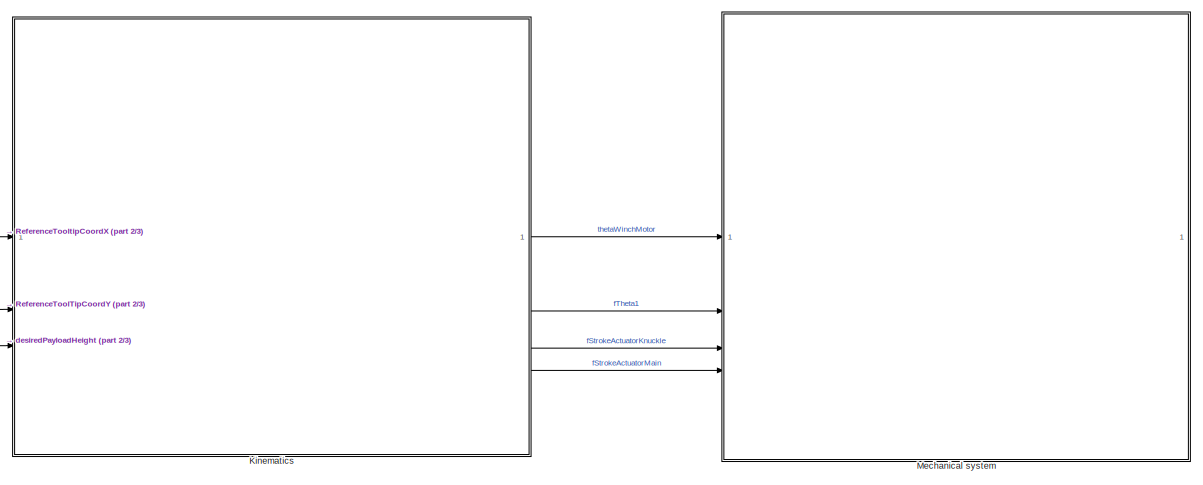
[diagram: root canvas - part 1/3, top right region]
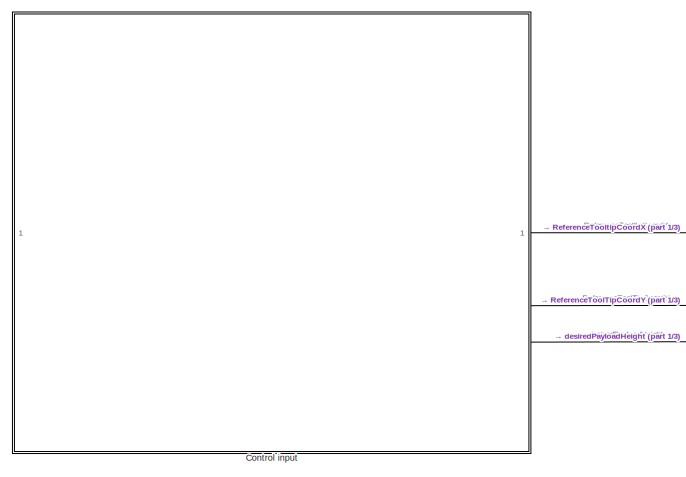
[diagram: root canvas - part 2/3, top left region]
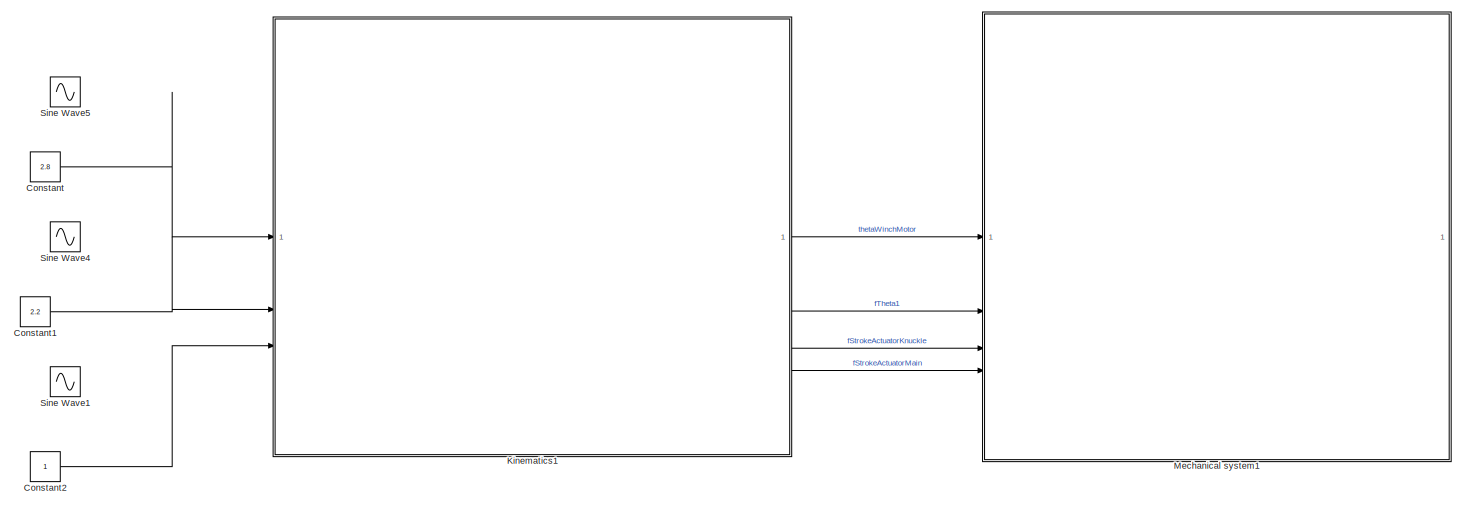
[diagram: root canvas - part 3/3, full width, bottom band]
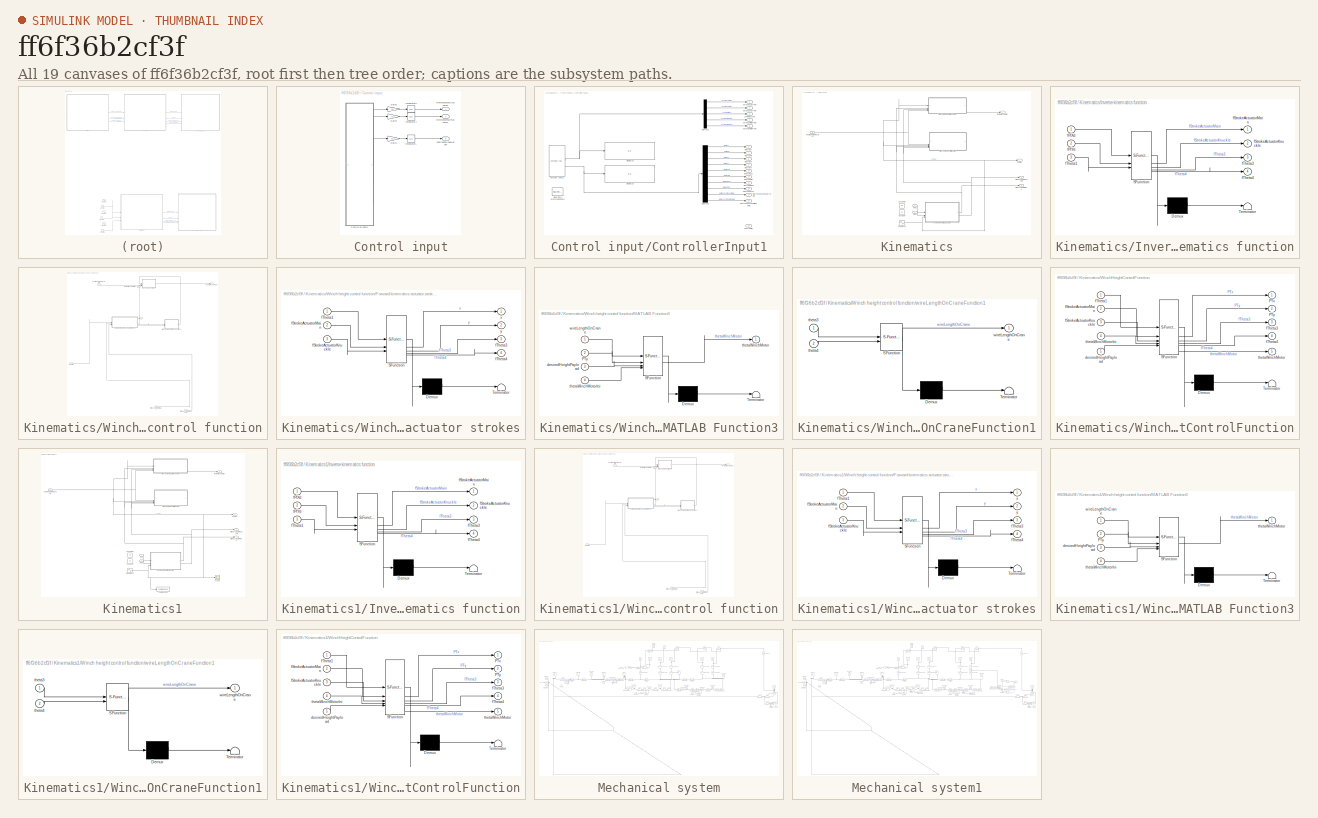
[diagram: thumbnail index - all 19 canvases of the model, root first then tree order]
MODEL slx_ff6f36b2cf3f
KIND model
CONFIG AbsTol = auto
CONFIG EnableMultiTasking = off
CONFIG FixedStep = 0.002
CONFIG MaxStep = auto
CONFIG MinStep = auto
CONFIG RelTol = 1e-3
CONFIG SampleTimeConstraint = Unconstrained
CONFIG SolverName = FixedStepAuto
CONFIG StartTime = 0.0
CONFIG StopTime = 15
BLOCK [Constant] Constant
  Value = 2.8
BLOCK [Constant] Constant1
  Value = 2.2
BLOCK [Constant] Constant2
BLOCK [SubSystem] Control input
  Commented = on
BLOCK [SubSystem] Control input/ControllerInput1
BLOCK [Outport] Control input/ControllerInput1/ButtonA
  Port = 6
BLOCK [Outport] Control input/ControllerInput1/ButtonB
  Port = 7
BLOCK [Outport] Control input/ControllerInput1/ButtonBack
  Port = 12
BLOCK [Outport] Control input/ControllerInput1/ButtonJoystickLeftHold
  Port = 14
BLOCK [Outport] Control input/ControllerInput1/ButtonJoystickRightHold
  Port = 15
BLOCK [Outport] Control input/ControllerInput1/ButtonLB
  Port = 10
BLOCK [Outport] Control input/ControllerInput1/ButtonRB
  Port = 11
BLOCK [Outport] Control input/ControllerInput1/ButtonStart
  Port = 13
BLOCK [Outport] Control input/ControllerInput1/ButtonX
  Port = 8
BLOCK [Outport] Control input/ControllerInput1/ButtonY
  Port = 9
BLOCK [Demux] Control input/ControllerInput1/Demux2
  Outputs = 5
BLOCK [Demux] Control input/ControllerInput1/Demux3
  Outputs = 10
BLOCK [Display] Control input/ControllerInput1/Display18
  Decimation = 1
BLOCK [Display] Control input/ControllerInput1/Display19
  Decimation = 1
BLOCK [Reference] Control input/ControllerInput1/Joystick Input1  REF=vrlib/Joystick Input
  SourceBlock = vrlib/Joystick Input
  SourceType = Joystick Input
BLOCK [Outport] Control input/ControllerInput1/JoystickLeftHor
BLOCK [Outport] Control input/ControllerInput1/JoystickLeftVer
  Port = 2
BLOCK [Outport] Control input/ControllerInput1/JoystickRightHor
  Port = 4
BLOCK [Outport] Control input/ControllerInput1/JoystickRightVer
  Port = 5
BLOCK [Outport] Control input/ControllerInput1/LTRTButtons
  Port = 3
BLOCK [Outport] Control input/ControllerInput1/PoV(Angle)
  Port = 16
BLOCK [Reference] Control input/ControllerInput1/Real-Time Synchronization1  REF=sldrtlib/Real-Time
Synchronization
  SourceBlock = sldrtlib/Real-Time\nSynchronization
  SourceType = Simulink Desktop Real-Time Synchronization
BLOCK [Gain] Control input/Gain1
  Gain = -0.2
BLOCK [Gain] Control input/Gain3
  Gain = 0.1
BLOCK [Gain] Control input/Gain4
  Gain = -0.1
BLOCK [Integrator] Control input/Integrator1
BLOCK [Integrator] Control input/Integrator3
  InitialCondition = 3.2
BLOCK [Integrator] Control input/Integrator4
  InitialCondition = 2.5
BLOCK [Outport] Control input/ReferenceToolTipCoordY
  Port = 2
BLOCK [Outport] Control input/ReferenceTooltipCoordX
BLOCK [Outport] Control input/desiredPayloadHeight
  Port = 3
BLOCK [SubSystem] Kinematics
  Commented = on
BLOCK [Constant] Kinematics/Constant6
  Value = 2.8
BLOCK [Constant] Kinematics/Constant7
  Value = 2.2
BLOCK [SubSystem] Kinematics/Inverse kinematics function
  ErrorFcn = Stateflow.Translate.translate
  LibrarySourceBlock = simulink/User-Defined\nFunctions/MATLAB Function
  PermitHierarchicalResolution = ExplicitOnly
  SFBlockType = MATLAB Function
  TreatAsAtomicUnit = on
BLOCK [Demux] Kinematics/Inverse kinematics function/ Demux 
  Outputs = 1
BLOCK [S-Function] Kinematics/Inverse kinematics function/ SFunction 
  EnableBusSupport = on
  FunctionName = sf_sfun
  PortCounts = [3 5]
  SFcnIsStateOwnerBlock = off
  SFunctionDeploymentMode = off
  Tag = Stateflow S-Function 8
BLOCK [Terminator] Kinematics/Inverse kinematics function/ Terminator 
BLOCK [Inport] Kinematics/Inverse kinematics function/fPtXd
BLOCK [Inport] Kinematics/Inverse kinematics function/fPtYd
  Port = 2
BLOCK [Outport] Kinematics/Inverse kinematics function/fStrokeActuatorKnuckle
  Port = 2
BLOCK [Outport] Kinematics/Inverse kinematics function/fStrokeActuatorMain
BLOCK [Inport] Kinematics/Inverse kinematics function/fTheta1
  Port = 3
BLOCK [Outport] Kinematics/Inverse kinematics function/fTheta3
  Port = 3
BLOCK [Outport] Kinematics/Inverse kinematics function/fTheta4
  Port = 4
BLOCK [Sin] Kinematics/Sine Wave2
  Amplitude = 0.05
  SampleTime = 0
BLOCK [SubSystem] Kinematics/Winch height control function
  TreatAsAtomicUnit = on
BLOCK [SubSystem] Kinematics/Winch height control function/Forward kinematics actuator strokes
  ErrorFcn = Stateflow.Translate.translate
  LibrarySourceBlock = simulink/User-Defined\nFunctions/MATLAB Function
  PermitHierarchicalResolution = ExplicitOnly
  SFBlockType = MATLAB Function
  TreatAsAtomicUnit = on
BLOCK [Demux] Kinematics/Winch height control function/Forward kinematics actuator strokes/ Demux 
  Outputs = 1
BLOCK [S-Function] Kinematics/Winch height control function/Forward kinematics actuator strokes/ SFunction 
  EnableBusSupport = on
  FunctionName = sf_sfun
  PortCounts = [3 5]
  SFcnIsStateOwnerBlock = off
  SFunctionDeploymentMode = off
  Tag = Stateflow S-Function 10
BLOCK [Terminator] Kinematics/Winch height control function/Forward kinematics actuator strokes/ Terminator 
BLOCK [Inport] Kinematics/Winch height control function/Forward kinematics actuator strokes/fStrokeActuatorKnuckle
  Port = 3
BLOCK [Inport] Kinematics/Winch height control function/Forward kinematics actuator strokes/fStrokeActuatorMain
  Port = 2
BLOCK [Inport] Kinematics/Winch height control function/Forward kinematics actuator strokes/fTheta1
BLOCK [Outport] Kinematics/Winch height control function/Forward kinematics actuator strokes/fTheta3
  Port = 3
BLOCK [Outport] Kinematics/Winch height control function/Forward kinematics actuator strokes/fTheta4
  Port = 4
BLOCK [Outport] Kinematics/Winch height control function/Forward kinematics actuator strokes/x
BLOCK [Outport] Kinematics/Winch height control function/Forward kinematics actuator strokes/y
  Port = 2
BLOCK [SubSystem] Kinematics/Winch height control function/MATLAB Function3
  ErrorFcn = Stateflow.Translate.translate
  LibrarySourceBlock = simulink/User-Defined\nFunctions/MATLAB Function
  PermitHierarchicalResolution = ExplicitOnly
  SFBlockType = MATLAB Function
  TreatAsAtomicUnit = on
BLOCK [Demux] Kinematics/Winch height control function/MATLAB Function3/ Demux 
  Outputs = 1
BLOCK [S-Function] Kinematics/Winch height control function/MATLAB Function3/ SFunction 
  EnableBusSupport = on
  FunctionName = sf_sfun
  PortCounts = [4 2]
  SFcnIsStateOwnerBlock = off
  SFunctionDeploymentMode = off
  Tag = Stateflow S-Function 7
BLOCK [Terminator] Kinematics/Winch height control function/MATLAB Function3/ Terminator 
BLOCK [Inport] Kinematics/Winch height control function/MATLAB Function3/PTy
  Port = 2
BLOCK [Inport] Kinematics/Winch height control function/MATLAB Function3/desiredHeightPayload
  Port = 3
BLOCK [Outport] Kinematics/Winch height control function/MATLAB Function3/thetaWinchMotor
BLOCK [Inport] Kinematics/Winch height control function/MATLAB Function3/thetaWinchMotorIni
  Port = 4
BLOCK [Inport] Kinematics/Winch height control function/MATLAB Function3/wireLengthOnCrane
BLOCK [Inport] Kinematics/Winch height control function/desiredHeightPayload
  Port = 2
BLOCK [Inport] Kinematics/Winch height control function/fStrokeActuatorKnuckle
  Port = 5
BLOCK [Inport] Kinematics/Winch height control function/fStrokeActuatorMain
  Port = 4
BLOCK [Inport] Kinematics/Winch height control function/fTheta1
  Port = 3
BLOCK [Outport] Kinematics/Winch height control function/fThetaWinchMotor
  Port = 2
BLOCK [Inport] Kinematics/Winch height control function/thetaWinchMotorIni
BLOCK [SubSystem] Kinematics/Winch height control function/wireLengthOnCraneFunction1
  ErrorFcn = Stateflow.Translate.translate
  LibrarySourceBlock = simulink/User-Defined\nFunctions/MATLAB Function
  PermitHierarchicalResolution = ExplicitOnly
  SFBlockType = MATLAB Function
  TreatAsAtomicUnit = on
BLOCK [Demux] Kinematics/Winch height control function/wireLengthOnCraneFunction1/ Demux 
  Outputs = 1
BLOCK [S-Function] Kinematics/Winch height control function/wireLengthOnCraneFunction1/ SFunction 
  EnableBusSupport = on
  FunctionName = sf_sfun
  PortCounts = [2 2]
  SFcnIsStateOwnerBlock = off
  SFunctionDeploymentMode = off
  Tag = Stateflow S-Function 9
BLOCK [Terminator] Kinematics/Winch height control function/wireLengthOnCraneFunction1/ Terminator 
BLOCK [Inport] Kinematics/Winch height control function/wireLengthOnCraneFunction1/theta3
BLOCK [Inport] Kinematics/Winch height control function/wireLengthOnCraneFunction1/theta4
  Port = 2
BLOCK [Outport] Kinematics/Winch height control function/wireLengthOnCraneFunction1/wireLengthOnCrane
BLOCK [Outport] Kinematics/Winch height control function/x
BLOCK [SubSystem] Kinematics/WinchHeightControlFunction
  ErrorFcn = Stateflow.Translate.translate
  LibrarySourceBlock = simulink/User-Defined\nFunctions/MATLAB Function
  PermitHierarchicalResolution = ExplicitOnly
  SFBlockType = MATLAB Function
  TreatAsAtomicUnit = on
BLOCK [Demux] Kinematics/WinchHeightControlFunction/ Demux 
  Outputs = 1
BLOCK [S-Function] Kinematics/WinchHeightControlFunction/ SFunction 
  EnableBusSupport = on
  FunctionName = sf_sfun
  PortCounts = [5 6]
  SFcnIsStateOwnerBlock = off
  SFunctionDeploymentMode = off
  Tag = Stateflow S-Function 11
BLOCK [Terminator] Kinematics/WinchHeightControlFunction/ Terminator 
BLOCK [Outport] Kinematics/WinchHeightControlFunction/PTx
BLOCK [Outport] Kinematics/WinchHeightControlFunction/PTy
  Port = 2
BLOCK [Inport] Kinematics/WinchHeightControlFunction/desiredHeightPayload
  Port = 5
BLOCK [Inport] Kinematics/WinchHeightControlFunction/fStrokeActuatorKnuckle
  Port = 3
BLOCK [Inport] Kinematics/WinchHeightControlFunction/fStrokeActuatorMain
  Port = 2
BLOCK [Inport] Kinematics/WinchHeightControlFunction/fTheta1
BLOCK [Outport] Kinematics/WinchHeightControlFunction/fTheta3
  Port = 3
BLOCK [Outport] Kinematics/WinchHeightControlFunction/fTheta4
  Port = 4
BLOCK [Outport] Kinematics/WinchHeightControlFunction/thetaWinchMotor
  Port = 5
BLOCK [Inport] Kinematics/WinchHeightControlFunction/thetaWinchMotorIni
  Port = 4
BLOCK [Inport] Kinematics/desiredHeightPayload
  Port = 3
BLOCK [Inport] Kinematics/fPtXd
BLOCK [Inport] Kinematics/fPtYd
  Port = 2
BLOCK [Outport] Kinematics/fStrokeActuatorKnuckle
  Port = 3
BLOCK [Outport] Kinematics/fStrokeActuatorMain
  Port = 4
BLOCK [Outport] Kinematics/fTheta1
  Port = 2
BLOCK [Outport] Kinematics/thetaWinchMotor
BLOCK [SubSystem] Kinematics1
BLOCK [Constant] Kinematics1/Constant6
  Value = 2.8
BLOCK [Constant] Kinematics1/Constant7
  Value = 2.2
BLOCK [SubSystem] Kinematics1/Inverse kinematics function
  ErrorFcn = Stateflow.Translate.translate
  LibrarySourceBlock = simulink/User-Defined\nFunctions/MATLAB Function
  PermitHierarchicalResolution = ExplicitOnly
  SFBlockType = MATLAB Function
  TreatAsAtomicUnit = on
BLOCK [Demux] Kinematics1/Inverse kinematics function/ Demux 
  Outputs = 1
BLOCK [S-Function] Kinematics1/Inverse kinematics function/ SFunction 
  EnableBusSupport = on
  FunctionName = sf_sfun
  PortCounts = [3 5]
  SFcnIsStateOwnerBlock = off
  SFunctionDeploymentMode = off
  Tag = Stateflow S-Function 1
BLOCK [Terminator] Kinematics1/Inverse kinematics function/ Terminator 
BLOCK [Inport] Kinematics1/Inverse kinematics function/fPtXd
BLOCK [Inport] Kinematics1/Inverse kinematics function/fPtYd
  Port = 2
BLOCK [Outport] Kinematics1/Inverse kinematics function/fStrokeActuatorKnuckle
  Port = 2
BLOCK [Outport] Kinematics1/Inverse kinematics function/fStrokeActuatorMain
BLOCK [Inport] Kinematics1/Inverse kinematics function/fTheta1
  Port = 3
BLOCK [Outport] Kinematics1/Inverse kinematics function/fTheta3
  Port = 3
BLOCK [Outport] Kinematics1/Inverse kinematics function/fTheta4
  Port = 4
BLOCK [Scope] Kinematics1/Scope
  Floating = off
  NumInputPorts = 1
  ScopeSpecificationString = Simulink.scopes.TimeScopeBlockCfg
BLOCK [Sin] Kinematics1/Sine Wave2
  Amplitude = 0.05
  SampleTime = 0
BLOCK [ToWorkspace] Kinematics1/To Workspace
  FixptAsFi = on
  MaxDataPoints = inf
  SampleTime = -1
  Save2DSignal = 2-D array (concatenate along first dimension)
  SaveFormat = Timeseries
  VariableName = testTheta1
BLOCK [SubSystem] Kinematics1/Winch height control function
  Commented = on
  TreatAsAtomicUnit = on
BLOCK [SubSystem] Kinematics1/Winch height control function/Forward kinematics actuator strokes
  ErrorFcn = Stateflow.Translate.translate
  LibrarySourceBlock = simulink/User-Defined\nFunctions/MATLAB Function
  PermitHierarchicalResolution = ExplicitOnly
  SFBlockType = MATLAB Function
  TreatAsAtomicUnit = on
BLOCK [Demux] Kinematics1/Winch height control function/Forward kinematics actuator strokes/ Demux 
  Outputs = 1
BLOCK [S-Function] Kinematics1/Winch height control function/Forward kinematics actuator strokes/ SFunction 
  EnableBusSupport = on
  FunctionName = sf_sfun
  PortCounts = [3 5]
  SFcnIsStateOwnerBlock = off
  SFunctionDeploymentMode = off
  Tag = Stateflow S-Function 2
BLOCK [Terminator] Kinematics1/Winch height control function/Forward kinematics actuator strokes/ Terminator 
BLOCK [Inport] Kinematics1/Winch height control function/Forward kinematics actuator strokes/fStrokeActuatorKnuckle
  Port = 3
BLOCK [Inport] Kinematics1/Winch height control function/Forward kinematics actuator strokes/fStrokeActuatorMain
  Port = 2
BLOCK [Inport] Kinematics1/Winch height control function/Forward kinematics actuator strokes/fTheta1
BLOCK [Outport] Kinematics1/Winch height control function/Forward kinematics actuator strokes/fTheta3
  Port = 3
BLOCK [Outport] Kinematics1/Winch height control function/Forward kinematics actuator strokes/fTheta4
  Port = 4
BLOCK [Outport] Kinematics1/Winch height control function/Forward kinematics actuator strokes/x
BLOCK [Outport] Kinematics1/Winch height control function/Forward kinematics actuator strokes/y
  Port = 2
BLOCK [SubSystem] Kinematics1/Winch height control function/MATLAB Function3
  ErrorFcn = Stateflow.Translate.translate
  LibrarySourceBlock = simulink/User-Defined\nFunctions/MATLAB Function
  PermitHierarchicalResolution = ExplicitOnly
  SFBlockType = MATLAB Function
  TreatAsAtomicUnit = on
BLOCK [Demux] Kinematics1/Winch height control function/MATLAB Function3/ Demux 
  Outputs = 1
BLOCK [S-Function] Kinematics1/Winch height control function/MATLAB Function3/ SFunction 
  EnableBusSupport = on
  FunctionName = sf_sfun
  PortCounts = [4 2]
  SFcnIsStateOwnerBlock = off
  SFunctionDeploymentMode = off
  Tag = Stateflow S-Function 3
BLOCK [Terminator] Kinematics1/Winch height control function/MATLAB Function3/ Terminator 
BLOCK [Inport] Kinematics1/Winch height control function/MATLAB Function3/PTy
  Port = 2
BLOCK [Inport] Kinematics1/Winch height control function/MATLAB Function3/desiredHeightPayload
  Port = 3
BLOCK [Outport] Kinematics1/Winch height control function/MATLAB Function3/thetaWinchMotor
BLOCK [Inport] Kinematics1/Winch height control function/MATLAB Function3/thetaWinchMotorIni
  Port = 4
BLOCK [Inport] Kinematics1/Winch height control function/MATLAB Function3/wireLengthOnCrane
BLOCK [Inport] Kinematics1/Winch height control function/desiredHeightPayload
  Port = 2
BLOCK [Inport] Kinematics1/Winch height control function/fStrokeActuatorKnuckle
  Port = 5
BLOCK [Inport] Kinematics1/Winch height control function/fStrokeActuatorMain
  Port = 4
BLOCK [Inport] Kinematics1/Winch height control function/fTheta1
  Port = 3
BLOCK [Outport] Kinematics1/Winch height control function/fThetaWinchMotor
  Port = 2
BLOCK [Inport] Kinematics1/Winch height control function/thetaWinchMotorIni
BLOCK [SubSystem] Kinematics1/Winch height control function/wireLengthOnCraneFunction1
  ErrorFcn = Stateflow.Translate.translate
  LibrarySourceBlock = simulink/User-Defined\nFunctions/MATLAB Function
  PermitHierarchicalResolution = ExplicitOnly
  SFBlockType = MATLAB Function
  TreatAsAtomicUnit = on
BLOCK [Demux] Kinematics1/Winch height control function/wireLengthOnCraneFunction1/ Demux 
  Outputs = 1
BLOCK [S-Function] Kinematics1/Winch height control function/wireLengthOnCraneFunction1/ SFunction 
  EnableBusSupport = on
  FunctionName = sf_sfun
  PortCounts = [2 2]
  SFcnIsStateOwnerBlock = off
  SFunctionDeploymentMode = off
  Tag = Stateflow S-Function 4
BLOCK [Terminator] Kinematics1/Winch height control function/wireLengthOnCraneFunction1/ Terminator 
BLOCK [Inport] Kinematics1/Winch height control function/wireLengthOnCraneFunction1/theta3
BLOCK [Inport] Kinematics1/Winch height control function/wireLengthOnCraneFunction1/theta4
  Port = 2
BLOCK [Outport] Kinematics1/Winch height control function/wireLengthOnCraneFunction1/wireLengthOnCrane
BLOCK [Outport] Kinematics1/Winch height control function/x
BLOCK [SubSystem] Kinematics1/WinchHeightControlFunction
  ErrorFcn = Stateflow.Translate.translate
  LibrarySourceBlock = simulink/User-Defined\nFunctions/MATLAB Function
  PermitHierarchicalResolution = ExplicitOnly
  SFBlockType = MATLAB Function
  TreatAsAtomicUnit = on
BLOCK [Demux] Kinematics1/WinchHeightControlFunction/ Demux 
  Outputs = 1
BLOCK [S-Function] Kinematics1/WinchHeightControlFunction/ SFunction 
  EnableBusSupport = on
  FunctionName = sf_sfun
  PortCounts = [5 6]
  SFcnIsStateOwnerBlock = off
  SFunctionDeploymentMode = off
  Tag = Stateflow S-Function 5
BLOCK [Terminator] Kinematics1/WinchHeightControlFunction/ Terminator 
BLOCK [Outport] Kinematics1/WinchHeightControlFunction/PTx
BLOCK [Outport] Kinematics1/WinchHeightControlFunction/PTy
  Port = 2
BLOCK [Inport] Kinematics1/WinchHeightControlFunction/desiredHeightPayload
  Port = 5
BLOCK [Inport] Kinematics1/WinchHeightControlFunction/fStrokeActuatorKnuckle
  Port = 3
BLOCK [Inport] Kinematics1/WinchHeightControlFunction/fStrokeActuatorMain
  Port = 2
BLOCK [Inport] Kinematics1/WinchHeightControlFunction/fTheta1
BLOCK [Outport] Kinematics1/WinchHeightControlFunction/fTheta3
  Port = 3
BLOCK [Outport] Kinematics1/WinchHeightControlFunction/fTheta4
  Port = 4
BLOCK [Outport] Kinematics1/WinchHeightControlFunction/thetaWinchMotor
  Port = 5
BLOCK [Inport] Kinematics1/WinchHeightControlFunction/thetaWinchMotorIni
  Port = 4
BLOCK [Inport] Kinematics1/desiredHeightPayload
  Port = 3
BLOCK [Inport] Kinematics1/fPtXd
BLOCK [Inport] Kinematics1/fPtYd
  Port = 2
BLOCK [Outport] Kinematics1/fStrokeActuatorKnuckle
  Port = 3
BLOCK [Outport] Kinematics1/fStrokeActuatorMain
  Port = 4
BLOCK [Outport] Kinematics1/fTheta1
  Port = 2
BLOCK [Outport] Kinematics1/thetaWinchMotor
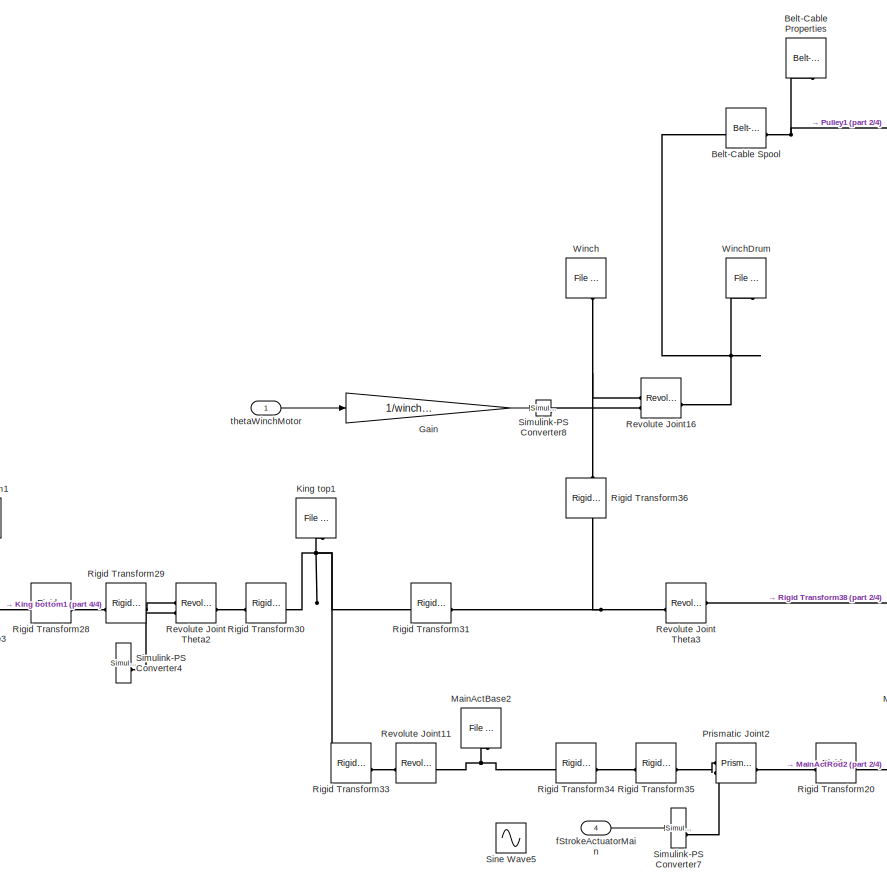
[diagram: Mechanical system - part 1/4, top center region]
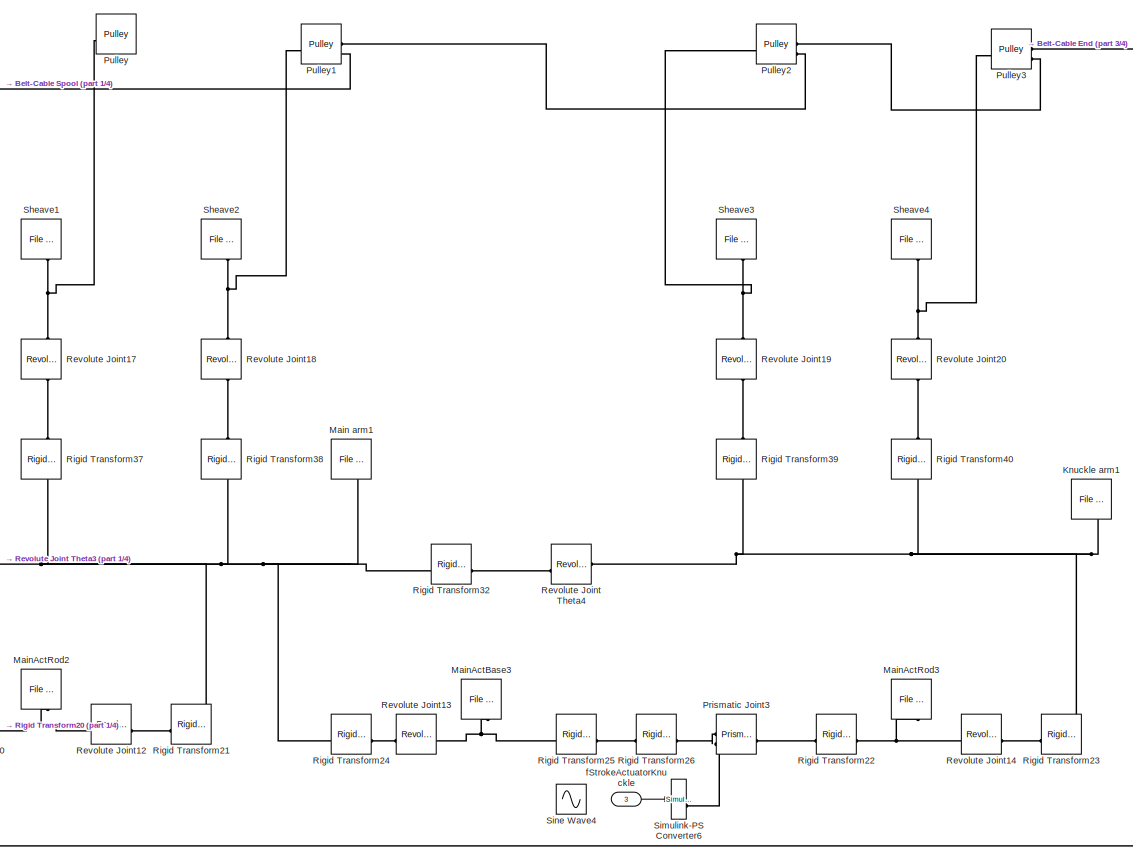
[diagram: Mechanical system - part 2/4, top center region]
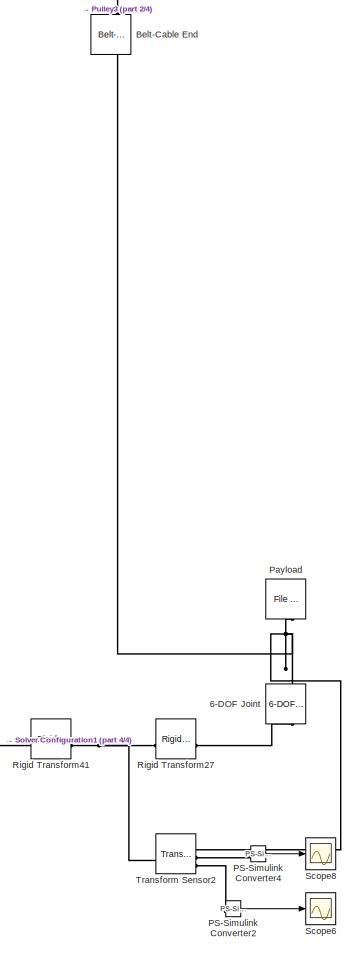
[diagram: Mechanical system - part 3/4, top right region]
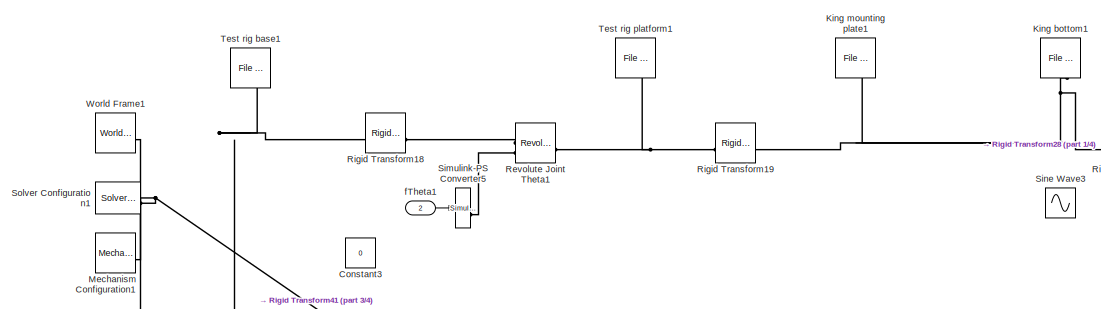
[diagram: Mechanical system - part 4/4, top left region]
BLOCK [SubSystem] Mechanical system
  Commented = on
BLOCK [Reference] Mechanical system/6-DOF Joint  REF=sm_lib/Joints/6-DOF Joint
  NameLocation = right
  SourceBlock = sm_lib/Joints/6-DOF Joint
  SourceType = 6-DOF Joint
BLOCK [Reference] Mechanical system/Belt-Cable End  REF=sm_lib/Belts and Cables/Belt-Cable End
  NameLocation = right
  SourceBlock = sm_lib/Belts and Cables/Belt-Cable End
  SourceType = Belt-Cable End
BLOCK [Reference] Mechanical system/Belt-Cable Properties  REF=sm_lib/Belts and Cables/Belt-Cable
Properties
  NameLocation = right
  SourceBlock = sm_lib/Belts and Cables/Belt-Cable\nProperties
  SourceType = Belt-Cable\nProperties
BLOCK [Reference] Mechanical system/Belt-Cable Spool  REF=sm_lib/Belts and Cables/Belt-Cable Spool
  SourceBlock = sm_lib/Belts and Cables/Belt-Cable Spool
  SourceType = Belt-Cable Spool
BLOCK [Constant] Mechanical system/Constant3
  Value = 0
BLOCK [Gain] Mechanical system/Gain
  Gain = 1/winchGearRatio
BLOCK [Reference] Mechanical system/King bottom1  REF=sm_lib/Body Elements/File Solid
  NameLocation = left
  SourceBlock = sm_lib/Body Elements/File Solid
  SourceType = File Solid
BLOCK [Reference] Mechanical system/King mounting plate1  REF=sm_lib/Body Elements/File Solid
  NameLocation = left
  SourceBlock = sm_lib/Body Elements/File Solid
  SourceType = File Solid
BLOCK [Reference] Mechanical system/King top1  REF=sm_lib/Body Elements/File Solid
  NameLocation = left
  SourceBlock = sm_lib/Body Elements/File Solid
  SourceType = File Solid
BLOCK [Reference] Mechanical system/Knuckle arm1  REF=sm_lib/Body Elements/File Solid
  NameLocation = left
  SourceBlock = sm_lib/Body Elements/File Solid
  SourceType = File Solid
BLOCK [Reference] Mechanical system/Main arm1  REF=sm_lib/Body Elements/File Solid
  NameLocation = left
  SourceBlock = sm_lib/Body Elements/File Solid
  SourceType = File Solid
BLOCK [Reference] Mechanical system/MainActBase2  REF=sm_lib/Body Elements/File Solid
  NameLocation = left
  SourceBlock = sm_lib/Body Elements/File Solid
  SourceType = File Solid
BLOCK [Reference] Mechanical system/MainActBase3  REF=sm_lib/Body Elements/File Solid
  NameLocation = left
  SourceBlock = sm_lib/Body Elements/File Solid
  SourceType = File Solid
BLOCK [Reference] Mechanical system/MainActRod2  REF=sm_lib/Body Elements/File Solid
  NameLocation = left
  SourceBlock = sm_lib/Body Elements/File Solid
  SourceType = File Solid
BLOCK [Reference] Mechanical system/MainActRod3  REF=sm_lib/Body Elements/File Solid
  NameLocation = left
  SourceBlock = sm_lib/Body Elements/File Solid
  SourceType = File Solid
BLOCK [Reference] Mechanical system/Mechanism Configuration1  REF=sm_lib/Utilities/Mechanism
Configuration
  SourceBlock = sm_lib/Utilities/Mechanism\nConfiguration
  SourceType = Mechanism\nConfiguration
BLOCK [Reference] Mechanical system/PS-Simulink Converter2  REF=nesl_utility/PS-Simulink
Converter
  SourceBlock = nesl_utility/PS-Simulink\nConverter
  SourceType = PS-Simulink\nConverter
BLOCK [Reference] Mechanical system/PS-Simulink Converter4  REF=nesl_utility/PS-Simulink
Converter
  SourceBlock = nesl_utility/PS-Simulink\nConverter
  SourceType = PS-Simulink\nConverter
BLOCK [Reference] Mechanical system/Payload  REF=sm_lib/Body Elements/File Solid
  NameLocation = left
  SourceBlock = sm_lib/Body Elements/File Solid
  SourceType = File Solid
BLOCK [Reference] Mechanical system/Prismatic Joint2  REF=sm_lib/Joints/Prismatic
Joint
  SourceBlock = sm_lib/Joints/Prismatic\nJoint
  SourceType = Prismatic\nJoint
BLOCK [Reference] Mechanical system/Prismatic Joint3  REF=sm_lib/Joints/Prismatic
Joint
  SourceBlock = sm_lib/Joints/Prismatic\nJoint
  SourceType = Prismatic\nJoint
BLOCK [Reference] Mechanical system/Pulley  REF=sm_lib/Belts and Cables/Pulley
  Commented = on
  SourceBlock = sm_lib/Belts and Cables/Pulley
  SourceType = Pulley
BLOCK [Reference] Mechanical system/Pulley1  REF=sm_lib/Belts and Cables/Pulley
  SourceBlock = sm_lib/Belts and Cables/Pulley
  SourceType = Pulley
BLOCK [Reference] Mechanical system/Pulley2  REF=sm_lib/Belts and Cables/Pulley
  SourceBlock = sm_lib/Belts and Cables/Pulley
  SourceType = Pulley
BLOCK [Reference] Mechanical system/Pulley3  REF=sm_lib/Belts and Cables/Pulley
  SourceBlock = sm_lib/Belts and Cables/Pulley
  SourceType = Pulley
BLOCK [Reference] Mechanical system/Revolute Joint Theta1  REF=sm_lib/Joints/Revolute Joint
  SourceBlock = sm_lib/Joints/Revolute Joint
  SourceType = Revolute Joint
BLOCK [Reference] Mechanical system/Revolute Joint Theta2  REF=sm_lib/Joints/Revolute Joint
  SourceBlock = sm_lib/Joints/Revolute Joint
  SourceType = Revolute Joint
BLOCK [Reference] Mechanical system/Revolute Joint Theta3  REF=sm_lib/Joints/Revolute Joint
  SourceBlock = sm_lib/Joints/Revolute Joint
  SourceType = Revolute Joint
BLOCK [Reference] Mechanical system/Revolute Joint Theta4  REF=sm_lib/Joints/Revolute Joint
  SourceBlock = sm_lib/Joints/Revolute Joint
  SourceType = Revolute Joint
BLOCK [Reference] Mechanical system/Revolute Joint11  REF=sm_lib/Joints/Revolute Joint
  SourceBlock = sm_lib/Joints/Revolute Joint
  SourceType = Revolute Joint
BLOCK [Reference] Mechanical system/Revolute Joint12  REF=sm_lib/Joints/Revolute Joint
  SourceBlock = sm_lib/Joints/Revolute Joint
  SourceType = Revolute Joint
BLOCK [Reference] Mechanical system/Revolute Joint13  REF=sm_lib/Joints/Revolute Joint
  SourceBlock = sm_lib/Joints/Revolute Joint
  SourceType = Revolute Joint
BLOCK [Reference] Mechanical system/Revolute Joint14  REF=sm_lib/Joints/Revolute Joint
  SourceBlock = sm_lib/Joints/Revolute Joint
  SourceType = Revolute Joint
BLOCK [Reference] Mechanical system/Revolute Joint16  REF=sm_lib/Joints/Revolute Joint
  SourceBlock = sm_lib/Joints/Revolute Joint
  SourceType = Revolute Joint
BLOCK [Reference] Mechanical system/Revolute Joint17  REF=sm_lib/Joints/Revolute Joint
  Commented = on
  NameLocation = right
  SourceBlock = sm_lib/Joints/Revolute Joint
  SourceType = Revolute Joint
BLOCK [Reference] Mechanical system/Revolute Joint18  REF=sm_lib/Joints/Revolute Joint
  NameLocation = right
  SourceBlock = sm_lib/Joints/Revolute Joint
  SourceType = Revolute Joint
BLOCK [Reference] Mechanical system/Revolute Joint19  REF=sm_lib/Joints/Revolute Joint
  NameLocation = right
  SourceBlock = sm_lib/Joints/Revolute Joint
  SourceType = Revolute Joint
BLOCK [Reference] Mechanical system/Revolute Joint20  REF=sm_lib/Joints/Revolute Joint
  NameLocation = right
  SourceBlock = sm_lib/Joints/Revolute Joint
  SourceType = Revolute Joint
BLOCK [Reference] Mechanical system/Rigid Transform18  REF=sm_lib/Frames and
Transforms/Rigid
Transform
  SourceBlock = sm_lib/Frames and\nTransforms/Rigid\nTransform
  SourceType = Rigid\nTransform
BLOCK [Reference] Mechanical system/Rigid Transform19  REF=sm_lib/Frames and
Transforms/Rigid
Transform
  SourceBlock = sm_lib/Frames and\nTransforms/Rigid\nTransform
  SourceType = Rigid\nTransform
BLOCK [Reference] Mechanical system/Rigid Transform20  REF=sm_lib/Frames and
Transforms/Rigid
Transform
  SourceBlock = sm_lib/Frames and\nTransforms/Rigid\nTransform
  SourceType = Rigid\nTransform
BLOCK [Reference] Mechanical system/Rigid Transform21  REF=sm_lib/Frames and
Transforms/Rigid
Transform
  SourceBlock = sm_lib/Frames and\nTransforms/Rigid\nTransform
  SourceType = Rigid\nTransform
BLOCK [Reference] Mechanical system/Rigid Transform22  REF=sm_lib/Frames and
Transforms/Rigid
Transform
  SourceBlock = sm_lib/Frames and\nTransforms/Rigid\nTransform
  SourceType = Rigid\nTransform
BLOCK [Reference] Mechanical system/Rigid Transform23  REF=sm_lib/Frames and
Transforms/Rigid
Transform
  SourceBlock = sm_lib/Frames and\nTransforms/Rigid\nTransform
  SourceType = Rigid\nTransform
BLOCK [Reference] Mechanical system/Rigid Transform24  REF=sm_lib/Frames and
Transforms/Rigid
Transform
  SourceBlock = sm_lib/Frames and\nTransforms/Rigid\nTransform
  SourceType = Rigid\nTransform
BLOCK [Reference] Mechanical system/Rigid Transform25  REF=sm_lib/Frames and
Transforms/Rigid
Transform
  SourceBlock = sm_lib/Frames and\nTransforms/Rigid\nTransform
  SourceType = Rigid\nTransform
BLOCK [Reference] Mechanical system/Rigid Transform26  REF=sm_lib/Frames and
Transforms/Rigid
Transform
  SourceBlock = sm_lib/Frames and\nTransforms/Rigid\nTransform
  SourceType = Rigid\nTransform
BLOCK [Reference] Mechanical system/Rigid Transform27  REF=sm_lib/Frames and
Transforms/Rigid
Transform
  SourceBlock = sm_lib/Frames and\nTransforms/Rigid\nTransform
  SourceType = Rigid\nTransform
BLOCK [Reference] Mechanical system/Rigid Transform28  REF=sm_lib/Frames and
Transforms/Rigid
Transform
  SourceBlock = sm_lib/Frames and\nTransforms/Rigid\nTransform
  SourceType = Rigid\nTransform
BLOCK [Reference] Mechanical system/Rigid Transform29  REF=sm_lib/Frames and
Transforms/Rigid
Transform
  SourceBlock = sm_lib/Frames and\nTransforms/Rigid\nTransform
  SourceType = Rigid\nTransform
BLOCK [Reference] Mechanical system/Rigid Transform30  REF=sm_lib/Frames and
Transforms/Rigid
Transform
  SourceBlock = sm_lib/Frames and\nTransforms/Rigid\nTransform
  SourceType = Rigid\nTransform
BLOCK [Reference] Mechanical system/Rigid Transform31  REF=sm_lib/Frames and
Transforms/Rigid
Transform
  SourceBlock = sm_lib/Frames and\nTransforms/Rigid\nTransform
  SourceType = Rigid\nTransform
BLOCK [Reference] Mechanical system/Rigid Transform32  REF=sm_lib/Frames and
Transforms/Rigid
Transform
  SourceBlock = sm_lib/Frames and\nTransforms/Rigid\nTransform
  SourceType = Rigid\nTransform
BLOCK [Reference] Mechanical system/Rigid Transform33  REF=sm_lib/Frames and
Transforms/Rigid
Transform
  SourceBlock = sm_lib/Frames and\nTransforms/Rigid\nTransform
  SourceType = Rigid\nTransform
BLOCK [Reference] Mechanical system/Rigid Transform34  REF=sm_lib/Frames and
Transforms/Rigid
Transform
  SourceBlock = sm_lib/Frames and\nTransforms/Rigid\nTransform
  SourceType = Rigid\nTransform
BLOCK [Reference] Mechanical system/Rigid Transform35  REF=sm_lib/Frames and
Transforms/Rigid
Transform
  SourceBlock = sm_lib/Frames and\nTransforms/Rigid\nTransform
  SourceType = Rigid\nTransform
BLOCK [Reference] Mechanical system/Rigid Transform36  REF=sm_lib/Frames and
Transforms/Rigid
Transform
  NameLocation = right
  SourceBlock = sm_lib/Frames and\nTransforms/Rigid\nTransform
  SourceType = Rigid\nTransform
BLOCK [Reference] Mechanical system/Rigid Transform37  REF=sm_lib/Frames and
Transforms/Rigid
Transform
  Commented = on
  NameLocation = right
  SourceBlock = sm_lib/Frames and\nTransforms/Rigid\nTransform
  SourceType = Rigid\nTransform
BLOCK [Reference] Mechanical system/Rigid Transform38  REF=sm_lib/Frames and
Transforms/Rigid
Transform
  NameLocation = right
  SourceBlock = sm_lib/Frames and\nTransforms/Rigid\nTransform
  SourceType = Rigid\nTransform
BLOCK [Reference] Mechanical system/Rigid Transform39  REF=sm_lib/Frames and
Transforms/Rigid
Transform
  NameLocation = right
  SourceBlock = sm_lib/Frames and\nTransforms/Rigid\nTransform
  SourceType = Rigid\nTransform
BLOCK [Reference] Mechanical system/Rigid Transform40  REF=sm_lib/Frames and
Transforms/Rigid
Transform
  NameLocation = right
  SourceBlock = sm_lib/Frames and\nTransforms/Rigid\nTransform
  SourceType = Rigid\nTransform
BLOCK [Reference] Mechanical system/Rigid Transform41  REF=sm_lib/Frames and
Transforms/Rigid
Transform
  SourceBlock = sm_lib/Frames and\nTransforms/Rigid\nTransform
  SourceType = Rigid\nTransform
BLOCK [Scope] Mechanical system/Scope6
  Floating = off
  NumInputPorts = 1
  ScopeSpecificationString = Simulink.scopes.TimeScopeBlockCfg('CurrentConfiguration', extmgr.ConfigurationSet(extmgr.Configuration('Core','General UI',true),extmgr.Configuration('Core','Source UI',true),extmgr.Configuration('Sources','WiredSimulink',true,'DataLoggingVariableName','ScopeData6'),extmgr.Configuration('Visuals','Time Domain',true,'SerializedDisplays',{struct('MinYLimReal','-0.00036','MaxYLimReal','0.00375','YLab...<+1421ch>
BLOCK [Scope] Mechanical system/Scope8
  Floating = off
  NumInputPorts = 1
  ScopeSpecificationString = Simulink.scopes.TimeScopeBlockCfg('CurrentConfiguration', extmgr.ConfigurationSet(extmgr.Configuration('Core','General UI',true),extmgr.Configuration('Core','Source UI',true),extmgr.Configuration('Sources','WiredSimulink',true,'DataLoggingVariableName','ScopeData8'),extmgr.Configuration('Visuals','Time Domain',true,'SerializedDisplays',{struct('MinYLimReal','-0.00354','MaxYLimReal','0.00104','YLab...<+1381ch>
BLOCK [Reference] Mechanical system/Sheave1  REF=sm_lib/Body Elements/File Solid
  Commented = on
  NameLocation = left
  SourceBlock = sm_lib/Body Elements/File Solid
  SourceType = File Solid
BLOCK [Reference] Mechanical system/Sheave2  REF=sm_lib/Body Elements/File Solid
  NameLocation = left
  SourceBlock = sm_lib/Body Elements/File Solid
  SourceType = File Solid
BLOCK [Reference] Mechanical system/Sheave3  REF=sm_lib/Body Elements/File Solid
  NameLocation = left
  SourceBlock = sm_lib/Body Elements/File Solid
  SourceType = File Solid
BLOCK [Reference] Mechanical system/Sheave4  REF=sm_lib/Body Elements/File Solid
  NameLocation = left
  SourceBlock = sm_lib/Body Elements/File Solid
  SourceType = File Solid
BLOCK [Reference] Mechanical system/Simulink-PS Converter4  REF=nesl_utility/Simulink-PS
Converter
  SourceBlock = nesl_utility/Simulink-PS\nConverter
  SourceType = Simulink-PS\nConverter
BLOCK [Reference] Mechanical system/Simulink-PS Converter5  REF=nesl_utility/Simulink-PS
Converter
  SourceBlock = nesl_utility/Simulink-PS\nConverter
  SourceType = Simulink-PS\nConverter
BLOCK [Reference] Mechanical system/Simulink-PS Converter6  REF=nesl_utility/Simulink-PS
Converter
  SourceBlock = nesl_utility/Simulink-PS\nConverter
  SourceType = Simulink-PS\nConverter
BLOCK [Reference] Mechanical system/Simulink-PS Converter7  REF=nesl_utility/Simulink-PS
Converter
  SourceBlock = nesl_utility/Simulink-PS\nConverter
  SourceType = Simulink-PS\nConverter
BLOCK [Reference] Mechanical system/Simulink-PS Converter8  REF=nesl_utility/Simulink-PS
Converter
  SourceBlock = nesl_utility/Simulink-PS\nConverter
  SourceType = Simulink-PS\nConverter
BLOCK [Sin] Mechanical system/Sine Wave3
  SampleTime = 0
BLOCK [Sin] Mechanical system/Sine Wave4
  Amplitude = 0.1
  Bias = 0.2
  SampleTime = 0
BLOCK [Sin] Mechanical system/Sine Wave5
  Amplitude = 0.1
  Bias = 0.2
  SampleTime = 0
BLOCK [Reference] Mechanical system/Solver Configuration1  REF=nesl_utility/Solver
Configuration
  SourceBlock = nesl_utility/Solver\nConfiguration
  SourceType = Solver\nConfiguration
BLOCK [Reference] Mechanical system/Test rig base1  REF=sm_lib/Body Elements/File Solid
  NameLocation = left
  SourceBlock = sm_lib/Body Elements/File Solid
  SourceType = File Solid
BLOCK [Reference] Mechanical system/Test rig platform1  REF=sm_lib/Body Elements/File Solid
  NameLocation = left
  SourceBlock = sm_lib/Body Elements/File Solid
  SourceType = File Solid
BLOCK [Reference] Mechanical system/Transform Sensor2  REF=sm_lib/Frames and
Transforms/Transform
Sensor
  SourceBlock = sm_lib/Frames and\nTransforms/Transform\nSensor
  SourceType = Transform\nSensor
BLOCK [Reference] Mechanical system/Winch  REF=sm_lib/Body Elements/File Solid
  NameLocation = left
  SourceBlock = sm_lib/Body Elements/File Solid
  SourceType = File Solid
BLOCK [Reference] Mechanical system/WinchDrum  REF=sm_lib/Body Elements/File Solid
  NameLocation = left
  SourceBlock = sm_lib/Body Elements/File Solid
  SourceType = File Solid
BLOCK [Reference] Mechanical system/World Frame1  REF=sm_lib/Frames and
Transforms/World Frame
  SourceBlock = sm_lib/Frames and\nTransforms/World Frame
  SourceType = World Frame
BLOCK [Inport] Mechanical system/fStrokeActuatorKnuckle
  Port = 3
BLOCK [Inport] Mechanical system/fStrokeActuatorMain
  Port = 4
BLOCK [Inport] Mechanical system/fTheta1
  Port = 2
BLOCK [Inport] Mechanical system/thetaWinchMotor
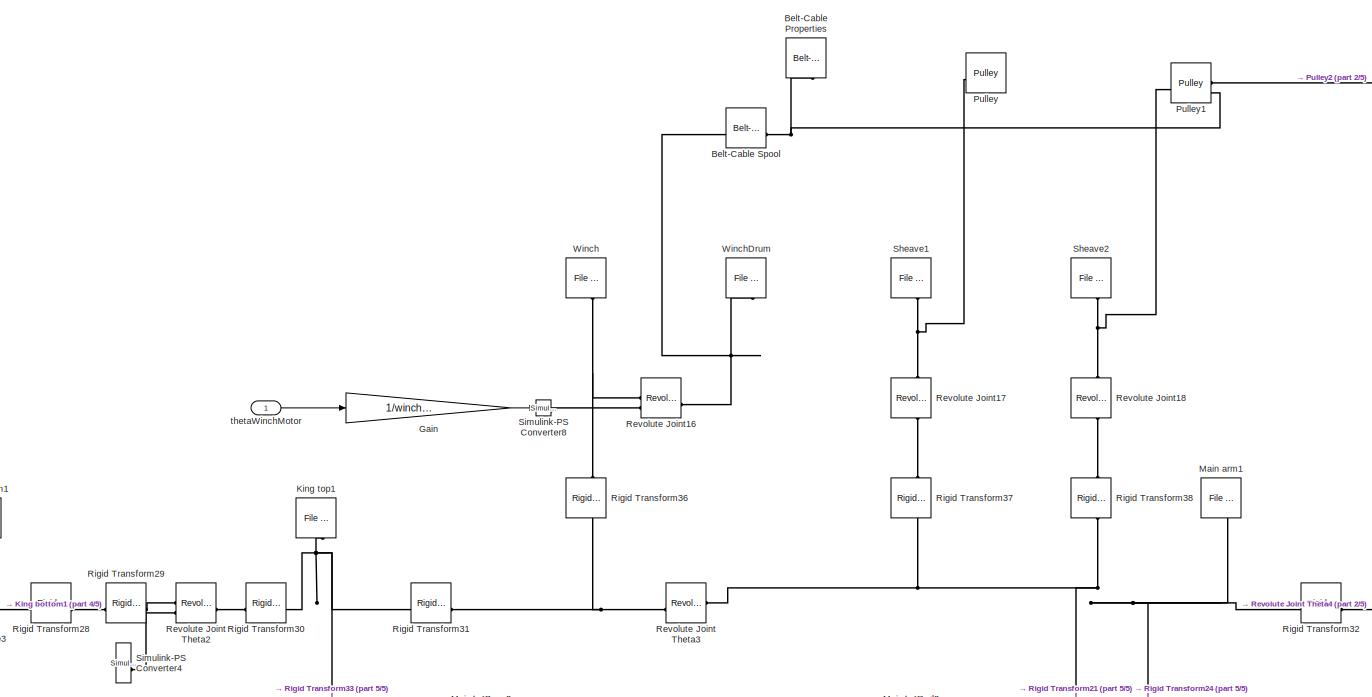
[diagram: Mechanical system1 - part 1/5, top center region]
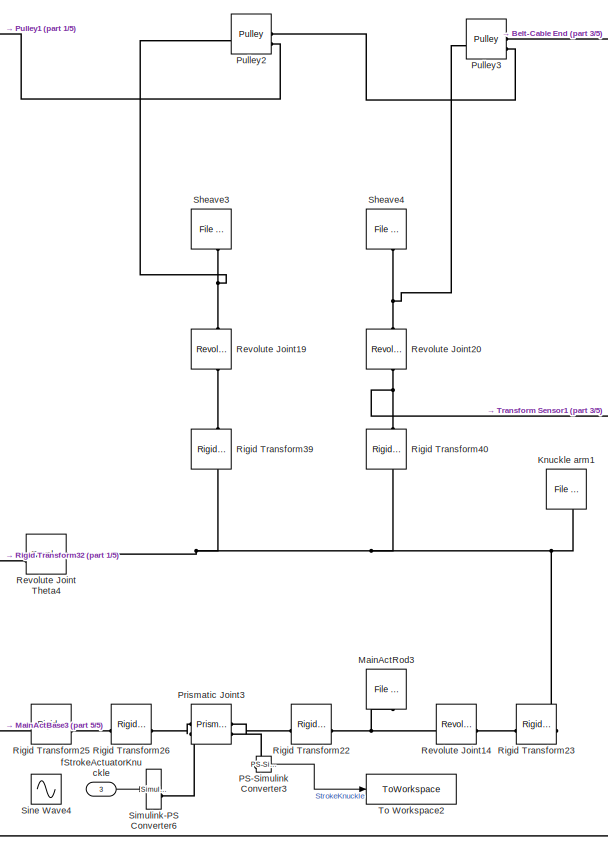
[diagram: Mechanical system1 - part 2/5, top right region]
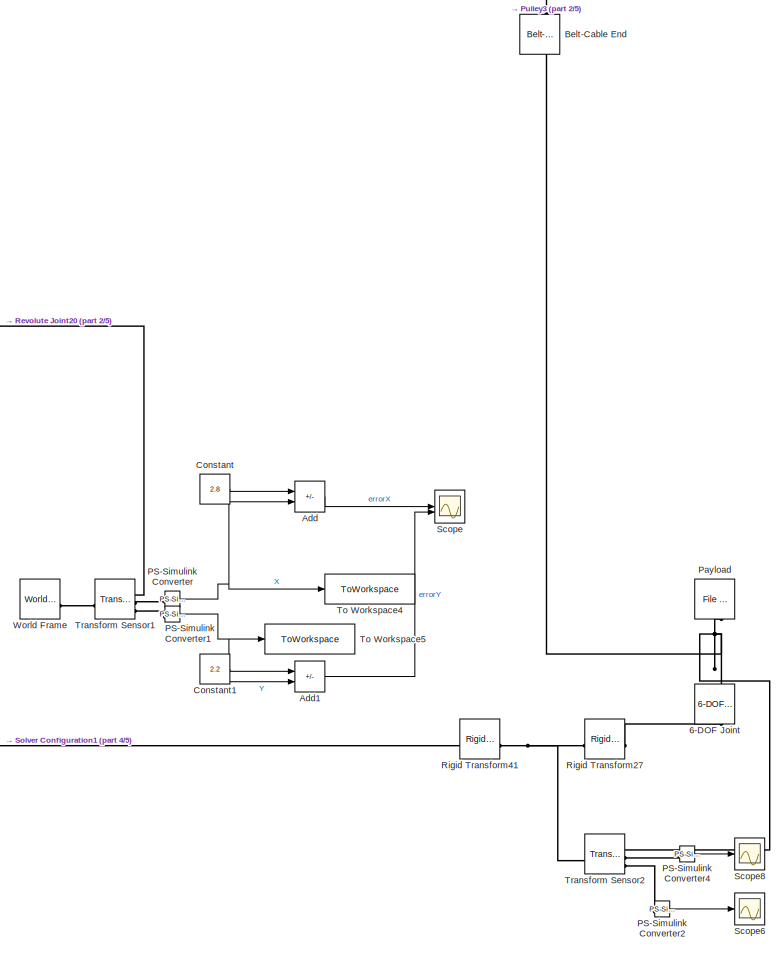
[diagram: Mechanical system1 - part 3/5, top right region]
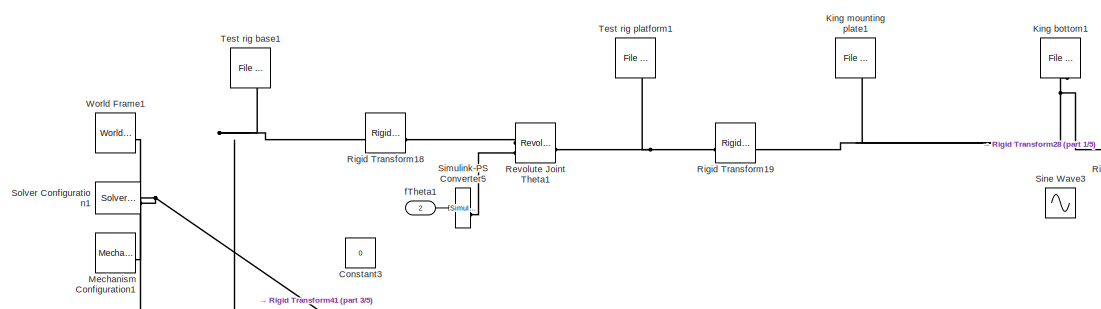
[diagram: Mechanical system1 - part 4/5, top left region]
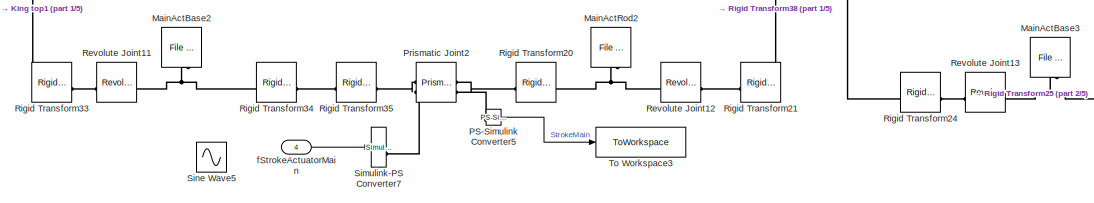
[diagram: Mechanical system1 - part 5/5, central region]
BLOCK [SubSystem] Mechanical system1
BLOCK [Reference] Mechanical system1/6-DOF Joint  REF=sm_lib/Joints/6-DOF Joint
  NameLocation = right
  SourceBlock = sm_lib/Joints/6-DOF Joint
  SourceType = 6-DOF Joint
BLOCK [Sum] Mechanical system1/Add
  IconShape = rectangular
  Inputs = +-
BLOCK [Sum] Mechanical system1/Add1
  IconShape = rectangular
  Inputs = +-
BLOCK [Reference] Mechanical system1/Belt-Cable End  REF=sm_lib/Belts and Cables/Belt-Cable End
  NameLocation = right
  SourceBlock = sm_lib/Belts and Cables/Belt-Cable End
  SourceType = Belt-Cable End
BLOCK [Reference] Mechanical system1/Belt-Cable Properties  REF=sm_lib/Belts and Cables/Belt-Cable
Properties
  NameLocation = right
  SourceBlock = sm_lib/Belts and Cables/Belt-Cable\nProperties
  SourceType = Belt-Cable\nProperties
BLOCK [Reference] Mechanical system1/Belt-Cable Spool  REF=sm_lib/Belts and Cables/Belt-Cable Spool
  SourceBlock = sm_lib/Belts and Cables/Belt-Cable Spool
  SourceType = Belt-Cable Spool
BLOCK [Constant] Mechanical system1/Constant
  Value = 2.8
BLOCK [Constant] Mechanical system1/Constant1
  Value = 2.2
BLOCK [Constant] Mechanical system1/Constant3
  Value = 0
BLOCK [Gain] Mechanical system1/Gain
  Gain = 1/winchGearRatio
BLOCK [Reference] Mechanical system1/King bottom1  REF=sm_lib/Body Elements/File Solid
  NameLocation = left
  SourceBlock = sm_lib/Body Elements/File Solid
  SourceType = File Solid
BLOCK [Reference] Mechanical system1/King mounting plate1  REF=sm_lib/Body Elements/File Solid
  NameLocation = left
  SourceBlock = sm_lib/Body Elements/File Solid
  SourceType = File Solid
BLOCK [Reference] Mechanical system1/King top1  REF=sm_lib/Body Elements/File Solid
  NameLocation = left
  SourceBlock = sm_lib/Body Elements/File Solid
  SourceType = File Solid
BLOCK [Reference] Mechanical system1/Knuckle arm1  REF=sm_lib/Body Elements/File Solid
  NameLocation = left
  SourceBlock = sm_lib/Body Elements/File Solid
  SourceType = File Solid
BLOCK [Reference] Mechanical system1/Main arm1  REF=sm_lib/Body Elements/File Solid
  NameLocation = left
  SourceBlock = sm_lib/Body Elements/File Solid
  SourceType = File Solid
BLOCK [Reference] Mechanical system1/MainActBase2  REF=sm_lib/Body Elements/File Solid
  NameLocation = left
  SourceBlock = sm_lib/Body Elements/File Solid
  SourceType = File Solid
BLOCK [Reference] Mechanical system1/MainActBase3  REF=sm_lib/Body Elements/File Solid
  NameLocation = left
  SourceBlock = sm_lib/Body Elements/File Solid
  SourceType = File Solid
BLOCK [Reference] Mechanical system1/MainActRod2  REF=sm_lib/Body Elements/File Solid
  NameLocation = left
  SourceBlock = sm_lib/Body Elements/File Solid
  SourceType = File Solid
BLOCK [Reference] Mechanical system1/MainActRod3  REF=sm_lib/Body Elements/File Solid
  NameLocation = left
  SourceBlock = sm_lib/Body Elements/File Solid
  SourceType = File Solid
BLOCK [Reference] Mechanical system1/Mechanism Configuration1  REF=sm_lib/Utilities/Mechanism
Configuration
  SourceBlock = sm_lib/Utilities/Mechanism\nConfiguration
  SourceType = Mechanism\nConfiguration
BLOCK [Reference] Mechanical system1/PS-Simulink Converter  REF=nesl_utility/PS-Simulink
Converter
  SourceBlock = nesl_utility/PS-Simulink\nConverter
  SourceType = PS-Simulink\nConverter
BLOCK [Reference] Mechanical system1/PS-Simulink Converter1  REF=nesl_utility/PS-Simulink
Converter
  SourceBlock = nesl_utility/PS-Simulink\nConverter
  SourceType = PS-Simulink\nConverter
BLOCK [Reference] Mechanical system1/PS-Simulink Converter2  REF=nesl_utility/PS-Simulink
Converter
  SourceBlock = nesl_utility/PS-Simulink\nConverter
  SourceType = PS-Simulink\nConverter
BLOCK [Reference] Mechanical system1/PS-Simulink Converter3  REF=nesl_utility/PS-Simulink
Converter
  SourceBlock = nesl_utility/PS-Simulink\nConverter
  SourceType = PS-Simulink\nConverter
BLOCK [Reference] Mechanical system1/PS-Simulink Converter4  REF=nesl_utility/PS-Simulink
Converter
  SourceBlock = nesl_utility/PS-Simulink\nConverter
  SourceType = PS-Simulink\nConverter
BLOCK [Reference] Mechanical system1/PS-Simulink Converter5  REF=nesl_utility/PS-Simulink
Converter
  SourceBlock = nesl_utility/PS-Simulink\nConverter
  SourceType = PS-Simulink\nConverter
BLOCK [Reference] Mechanical system1/Payload  REF=sm_lib/Body Elements/File Solid
  NameLocation = left
  SourceBlock = sm_lib/Body Elements/File Solid
  SourceType = File Solid
BLOCK [Reference] Mechanical system1/Prismatic Joint2  REF=sm_lib/Joints/Prismatic
Joint
  SourceBlock = sm_lib/Joints/Prismatic\nJoint
  SourceType = Prismatic\nJoint
BLOCK [Reference] Mechanical system1/Prismatic Joint3  REF=sm_lib/Joints/Prismatic
Joint
  SourceBlock = sm_lib/Joints/Prismatic\nJoint
  SourceType = Prismatic\nJoint
BLOCK [Reference] Mechanical system1/Pulley  REF=sm_lib/Belts and Cables/Pulley
  Commented = on
  SourceBlock = sm_lib/Belts and Cables/Pulley
  SourceType = Pulley
BLOCK [Reference] Mechanical system1/Pulley1  REF=sm_lib/Belts and Cables/Pulley
  SourceBlock = sm_lib/Belts and Cables/Pulley
  SourceType = Pulley
BLOCK [Reference] Mechanical system1/Pulley2  REF=sm_lib/Belts and Cables/Pulley
  SourceBlock = sm_lib/Belts and Cables/Pulley
  SourceType = Pulley
BLOCK [Reference] Mechanical system1/Pulley3  REF=sm_lib/Belts and Cables/Pulley
  SourceBlock = sm_lib/Belts and Cables/Pulley
  SourceType = Pulley
BLOCK [Reference] Mechanical system1/Revolute Joint Theta1  REF=sm_lib/Joints/Revolute Joint
  SourceBlock = sm_lib/Joints/Revolute Joint
  SourceType = Revolute Joint
BLOCK [Reference] Mechanical system1/Revolute Joint Theta2  REF=sm_lib/Joints/Revolute Joint
  SourceBlock = sm_lib/Joints/Revolute Joint
  SourceType = Revolute Joint
BLOCK [Reference] Mechanical system1/Revolute Joint Theta3  REF=sm_lib/Joints/Revolute Joint
  SourceBlock = sm_lib/Joints/Revolute Joint
  SourceType = Revolute Joint
BLOCK [Reference] Mechanical system1/Revolute Joint Theta4  REF=sm_lib/Joints/Revolute Joint
  SourceBlock = sm_lib/Joints/Revolute Joint
  SourceType = Revolute Joint
BLOCK [Reference] Mechanical system1/Revolute Joint11  REF=sm_lib/Joints/Revolute Joint
  SourceBlock = sm_lib/Joints/Revolute Joint
  SourceType = Revolute Joint
BLOCK [Reference] Mechanical system1/Revolute Joint12  REF=sm_lib/Joints/Revolute Joint
  SourceBlock = sm_lib/Joints/Revolute Joint
  SourceType = Revolute Joint
BLOCK [Reference] Mechanical system1/Revolute Joint13  REF=sm_lib/Joints/Revolute Joint
  SourceBlock = sm_lib/Joints/Revolute Joint
  SourceType = Revolute Joint
BLOCK [Reference] Mechanical system1/Revolute Joint14  REF=sm_lib/Joints/Revolute Joint
  SourceBlock = sm_lib/Joints/Revolute Joint
  SourceType = Revolute Joint
BLOCK [Reference] Mechanical system1/Revolute Joint16  REF=sm_lib/Joints/Revolute Joint
  SourceBlock = sm_lib/Joints/Revolute Joint
  SourceType = Revolute Joint
BLOCK [Reference] Mechanical system1/Revolute Joint17  REF=sm_lib/Joints/Revolute Joint
  Commented = on
  NameLocation = right
  SourceBlock = sm_lib/Joints/Revolute Joint
  SourceType = Revolute Joint
BLOCK [Reference] Mechanical system1/Revolute Joint18  REF=sm_lib/Joints/Revolute Joint
  NameLocation = right
  SourceBlock = sm_lib/Joints/Revolute Joint
  SourceType = Revolute Joint
BLOCK [Reference] Mechanical system1/Revolute Joint19  REF=sm_lib/Joints/Revolute Joint
  NameLocation = right
  SourceBlock = sm_lib/Joints/Revolute Joint
  SourceType = Revolute Joint
BLOCK [Reference] Mechanical system1/Revolute Joint20  REF=sm_lib/Joints/Revolute Joint
  NameLocation = right
  SourceBlock = sm_lib/Joints/Revolute Joint
  SourceType = Revolute Joint
BLOCK [Reference] Mechanical system1/Rigid Transform18  REF=sm_lib/Frames and
Transforms/Rigid
Transform
  SourceBlock = sm_lib/Frames and\nTransforms/Rigid\nTransform
  SourceType = Rigid\nTransform
BLOCK [Reference] Mechanical system1/Rigid Transform19  REF=sm_lib/Frames and
Transforms/Rigid
Transform
  SourceBlock = sm_lib/Frames and\nTransforms/Rigid\nTransform
  SourceType = Rigid\nTransform
BLOCK [Reference] Mechanical system1/Rigid Transform20  REF=sm_lib/Frames and
Transforms/Rigid
Transform
  SourceBlock = sm_lib/Frames and\nTransforms/Rigid\nTransform
  SourceType = Rigid\nTransform
BLOCK [Reference] Mechanical system1/Rigid Transform21  REF=sm_lib/Frames and
Transforms/Rigid
Transform
  SourceBlock = sm_lib/Frames and\nTransforms/Rigid\nTransform
  SourceType = Rigid\nTransform
BLOCK [Reference] Mechanical system1/Rigid Transform22  REF=sm_lib/Frames and
Transforms/Rigid
Transform
  SourceBlock = sm_lib/Frames and\nTransforms/Rigid\nTransform
  SourceType = Rigid\nTransform
BLOCK [Reference] Mechanical system1/Rigid Transform23  REF=sm_lib/Frames and
Transforms/Rigid
Transform
  SourceBlock = sm_lib/Frames and\nTransforms/Rigid\nTransform
  SourceType = Rigid\nTransform
BLOCK [Reference] Mechanical system1/Rigid Transform24  REF=sm_lib/Frames and
Transforms/Rigid
Transform
  SourceBlock = sm_lib/Frames and\nTransforms/Rigid\nTransform
  SourceType = Rigid\nTransform
BLOCK [Reference] Mechanical system1/Rigid Transform25  REF=sm_lib/Frames and
Transforms/Rigid
Transform
  SourceBlock = sm_lib/Frames and\nTransforms/Rigid\nTransform
  SourceType = Rigid\nTransform
BLOCK [Reference] Mechanical system1/Rigid Transform26  REF=sm_lib/Frames and
Transforms/Rigid
Transform
  SourceBlock = sm_lib/Frames and\nTransforms/Rigid\nTransform
  SourceType = Rigid\nTransform
BLOCK [Reference] Mechanical system1/Rigid Transform27  REF=sm_lib/Frames and
Transforms/Rigid
Transform
  SourceBlock = sm_lib/Frames and\nTransforms/Rigid\nTransform
  SourceType = Rigid\nTransform
BLOCK [Reference] Mechanical system1/Rigid Transform28  REF=sm_lib/Frames and
Transforms/Rigid
Transform
  SourceBlock = sm_lib/Frames and\nTransforms/Rigid\nTransform
  SourceType = Rigid\nTransform
BLOCK [Reference] Mechanical system1/Rigid Transform29  REF=sm_lib/Frames and
Transforms/Rigid
Transform
  SourceBlock = sm_lib/Frames and\nTransforms/Rigid\nTransform
  SourceType = Rigid\nTransform
BLOCK [Reference] Mechanical system1/Rigid Transform30  REF=sm_lib/Frames and
Transforms/Rigid
Transform
  SourceBlock = sm_lib/Frames and\nTransforms/Rigid\nTransform
  SourceType = Rigid\nTransform
BLOCK [Reference] Mechanical system1/Rigid Transform31  REF=sm_lib/Frames and
Transforms/Rigid
Transform
  SourceBlock = sm_lib/Frames and\nTransforms/Rigid\nTransform
  SourceType = Rigid\nTransform
BLOCK [Reference] Mechanical system1/Rigid Transform32  REF=sm_lib/Frames and
Transforms/Rigid
Transform
  SourceBlock = sm_lib/Frames and\nTransforms/Rigid\nTransform
  SourceType = Rigid\nTransform
BLOCK [Reference] Mechanical system1/Rigid Transform33  REF=sm_lib/Frames and
Transforms/Rigid
Transform
  SourceBlock = sm_lib/Frames and\nTransforms/Rigid\nTransform
  SourceType = Rigid\nTransform
BLOCK [Reference] Mechanical system1/Rigid Transform34  REF=sm_lib/Frames and
Transforms/Rigid
Transform
  SourceBlock = sm_lib/Frames and\nTransforms/Rigid\nTransform
  SourceType = Rigid\nTransform
BLOCK [Reference] Mechanical system1/Rigid Transform35  REF=sm_lib/Frames and
Transforms/Rigid
Transform
  SourceBlock = sm_lib/Frames and\nTransforms/Rigid\nTransform
  SourceType = Rigid\nTransform
BLOCK [Reference] Mechanical system1/Rigid Transform36  REF=sm_lib/Frames and
Transforms/Rigid
Transform
  NameLocation = right
  SourceBlock = sm_lib/Frames and\nTransforms/Rigid\nTransform
  SourceType = Rigid\nTransform
BLOCK [Reference] Mechanical system1/Rigid Transform37  REF=sm_lib/Frames and
Transforms/Rigid
Transform
  Commented = on
  NameLocation = right
  SourceBlock = sm_lib/Frames and\nTransforms/Rigid\nTransform
  SourceType = Rigid\nTransform
BLOCK [Reference] Mechanical system1/Rigid Transform38  REF=sm_lib/Frames and
Transforms/Rigid
Transform
  NameLocation = right
  SourceBlock = sm_lib/Frames and\nTransforms/Rigid\nTransform
  SourceType = Rigid\nTransform
BLOCK [Reference] Mechanical system1/Rigid Transform39  REF=sm_lib/Frames and
Transforms/Rigid
Transform
  NameLocation = right
  SourceBlock = sm_lib/Frames and\nTransforms/Rigid\nTransform
  SourceType = Rigid\nTransform
BLOCK [Reference] Mechanical system1/Rigid Transform40  REF=sm_lib/Frames and
Transforms/Rigid
Transform
  NameLocation = right
  SourceBlock = sm_lib/Frames and\nTransforms/Rigid\nTransform
  SourceType = Rigid\nTransform
BLOCK [Reference] Mechanical system1/Rigid Transform41  REF=sm_lib/Frames and
Transforms/Rigid
Transform
  SourceBlock = sm_lib/Frames and\nTransforms/Rigid\nTransform
  SourceType = Rigid\nTransform
BLOCK [Scope] Mechanical system1/Scope
  Floating = off
  NumInputPorts = 2
  ScopeSpecificationString = Simulink.scopes.TimeScopeBlockCfg('CurrentConfiguration', extmgr.ConfigurationSet(extmgr.Configuration('Core','General UI',true),extmgr.Configuration('Core','Source UI',true),extmgr.Configuration('Sources','WiredSimulink',true,'DataLoggingVariableName','ScopeData1'),extmgr.Configuration('Visuals','Time Domain',true,'SerializedDisplays',{struct('MinYLimReal','0.00095','MaxYLimReal','0.0017','YLabel...<+1406ch>
BLOCK [Scope] Mechanical system1/Scope6
  Floating = off
  NumInputPorts = 1
  ScopeSpecificationString = Simulink.scopes.TimeScopeBlockCfg('CurrentConfiguration', extmgr.ConfigurationSet(extmgr.Configuration('Core','General UI',true),extmgr.Configuration('Core','Source UI',true),extmgr.Configuration('Sources','WiredSimulink',true,'DataLoggingVariableName','ScopeData6'),extmgr.Configuration('Visuals','Time Domain',true,'SerializedDisplays',{struct('MinYLimReal','-0.00036','MaxYLimReal','0.00375','YLab...<+1421ch>
BLOCK [Scope] Mechanical system1/Scope8
  Floating = off
  NumInputPorts = 1
  ScopeSpecificationString = Simulink.scopes.TimeScopeBlockCfg('CurrentConfiguration', extmgr.ConfigurationSet(extmgr.Configuration('Core','General UI',true),extmgr.Configuration('Core','Source UI',true),extmgr.Configuration('Sources','WiredSimulink',true,'DataLoggingVariableName','ScopeData8'),extmgr.Configuration('Visuals','Time Domain',true,'SerializedDisplays',{struct('MinYLimReal','-0.00354','MaxYLimReal','0.00104','YLab...<+1381ch>
BLOCK [Reference] Mechanical system1/Sheave1  REF=sm_lib/Body Elements/File Solid
  Commented = on
  NameLocation = left
  SourceBlock = sm_lib/Body Elements/File Solid
  SourceType = File Solid
BLOCK [Reference] Mechanical system1/Sheave2  REF=sm_lib/Body Elements/File Solid
  NameLocation = left
  SourceBlock = sm_lib/Body Elements/File Solid
  SourceType = File Solid
BLOCK [Reference] Mechanical system1/Sheave3  REF=sm_lib/Body Elements/File Solid
  NameLocation = left
  SourceBlock = sm_lib/Body Elements/File Solid
  SourceType = File Solid
BLOCK [Reference] Mechanical system1/Sheave4  REF=sm_lib/Body Elements/File Solid
  NameLocation = left
  SourceBlock = sm_lib/Body Elements/File Solid
  SourceType = File Solid
BLOCK [Reference] Mechanical system1/Simulink-PS Converter4  REF=nesl_utility/Simulink-PS
Converter
  SourceBlock = nesl_utility/Simulink-PS\nConverter
  SourceType = Simulink-PS\nConverter
BLOCK [Reference] Mechanical system1/Simulink-PS Converter5  REF=nesl_utility/Simulink-PS
Converter
  SourceBlock = nesl_utility/Simulink-PS\nConverter
  SourceType = Simulink-PS\nConverter
BLOCK [Reference] Mechanical system1/Simulink-PS Converter6  REF=nesl_utility/Simulink-PS
Converter
  SourceBlock = nesl_utility/Simulink-PS\nConverter
  SourceType = Simulink-PS\nConverter
BLOCK [Reference] Mechanical system1/Simulink-PS Converter7  REF=nesl_utility/Simulink-PS
Converter
  SourceBlock = nesl_utility/Simulink-PS\nConverter
  SourceType = Simulink-PS\nConverter
BLOCK [Reference] Mechanical system1/Simulink-PS Converter8  REF=nesl_utility/Simulink-PS
Converter
  SourceBlock = nesl_utility/Simulink-PS\nConverter
  SourceType = Simulink-PS\nConverter
BLOCK [Sin] Mechanical system1/Sine Wave3
  SampleTime = 0
BLOCK [Sin] Mechanical system1/Sine Wave4
  Amplitude = 0.1
  Bias = 0.2
  SampleTime = 0
BLOCK [Sin] Mechanical system1/Sine Wave5
  Amplitude = 0.1
  Bias = 0.2
  SampleTime = 0
BLOCK [Reference] Mechanical system1/Solver Configuration1  REF=nesl_utility/Solver
Configuration
  SourceBlock = nesl_utility/Solver\nConfiguration
  SourceType = Solver\nConfiguration
BLOCK [Reference] Mechanical system1/Test rig base1  REF=sm_lib/Body Elements/File Solid
  NameLocation = left
  SourceBlock = sm_lib/Body Elements/File Solid
  SourceType = File Solid
BLOCK [Reference] Mechanical system1/Test rig platform1  REF=sm_lib/Body Elements/File Solid
  NameLocation = left
  SourceBlock = sm_lib/Body Elements/File Solid
  SourceType = File Solid
BLOCK [ToWorkspace] Mechanical system1/To Workspace2
  FixptAsFi = on
  MaxDataPoints = inf
  SampleTime = -1
  Save2DSignal = 2-D array (concatenate along first dimension)
  SaveFormat = Structure
  VariableName = testStrokeKnuckle
BLOCK [ToWorkspace] Mechanical system1/To Workspace3
  FixptAsFi = on
  MaxDataPoints = inf
  SampleTime = -1
  Save2DSignal = 2-D array (concatenate along first dimension)
  SaveFormat = Structure
  VariableName = testStrokeMain
BLOCK [ToWorkspace] Mechanical system1/To Workspace4
  MaxDataPoints = inf
  SampleTime = -1
  Save2DSignal = 2-D array (concatenate along first dimension)
  SaveFormat = Structure
  VariableName = testX
BLOCK [ToWorkspace] Mechanical system1/To Workspace5
  FixptAsFi = on
  MaxDataPoints = inf
  SampleTime = -1
  Save2DSignal = 2-D array (concatenate along first dimension)
  SaveFormat = Structure
  VariableName = testY
BLOCK [Reference] Mechanical system1/Transform Sensor1  REF=sm_lib/Frames and
Transforms/Transform
Sensor
  SourceBlock = sm_lib/Frames and\nTransforms/Transform\nSensor
  SourceType = Transform\nSensor
BLOCK [Reference] Mechanical system1/Transform Sensor2  REF=sm_lib/Frames and
Transforms/Transform
Sensor
  SourceBlock = sm_lib/Frames and\nTransforms/Transform\nSensor
  SourceType = Transform\nSensor
BLOCK [Reference] Mechanical system1/Winch  REF=sm_lib/Body Elements/File Solid
  NameLocation = left
  SourceBlock = sm_lib/Body Elements/File Solid
  SourceType = File Solid
BLOCK [Reference] Mechanical system1/WinchDrum  REF=sm_lib/Body Elements/File Solid
  NameLocation = left
  SourceBlock = sm_lib/Body Elements/File Solid
  SourceType = File Solid
BLOCK [Reference] Mechanical system1/World Frame  REF=sm_lib/Frames and
Transforms/World Frame
  SourceBlock = sm_lib/Frames and\nTransforms/World Frame
  SourceType = World Frame
BLOCK [Reference] Mechanical system1/World Frame1  REF=sm_lib/Frames and
Transforms/World Frame
  SourceBlock = sm_lib/Frames and\nTransforms/World Frame
  SourceType = World Frame
BLOCK [Inport] Mechanical system1/fStrokeActuatorKnuckle
  Port = 3
BLOCK [Inport] Mechanical system1/fStrokeActuatorMain
  Port = 4
BLOCK [Inport] Mechanical system1/fTheta1
  Port = 2
BLOCK [Inport] Mechanical system1/thetaWinchMotor
BLOCK [Sin] Sine Wave1
  Amplitude = 0.5
  Bias = 0.5
  SampleTime = 0
BLOCK [Sin] Sine Wave4
  Amplitude = 0.1
  Bias = 2.2
  SampleTime = 0
BLOCK [Sin] Sine Wave5
  Amplitude = 0.1
  Bias = 3.3
  SampleTime = 0
LINE Constant1:1 -> Kinematics1:2
LINE Constant2:1 -> Kinematics1:3
LINE Constant:1 -> Kinematics1:1
LINE Control input/ControllerInput1/Demux2:1 -> Control input/ControllerInput1/JoystickLeftHor:1
LINE Control input/ControllerInput1/Demux2:2 -> Control input/ControllerInput1/JoystickLeftVer:1
LINE Control input/ControllerInput1/Demux2:3 -> Control input/ControllerInput1/LTRTButtons:1
LINE Control input/ControllerInput1/Demux2:4 -> Control input/ControllerInput1/JoystickRightHor:1
LINE Control input/ControllerInput1/Demux2:5 -> Control input/ControllerInput1/JoystickRightVer:1
LINE Control input/ControllerInput1/Demux3:1 -> Control input/ControllerInput1/ButtonA:1
LINE Control input/ControllerInput1/Demux3:10 -> Control input/ControllerInput1/ButtonJoystickRightHold:1
LINE Control input/ControllerInput1/Demux3:2 -> Control input/ControllerInput1/ButtonB:1
LINE Control input/ControllerInput1/Demux3:3 -> Control input/ControllerInput1/ButtonX:1
LINE Control input/ControllerInput1/Demux3:4 -> Control input/ControllerInput1/ButtonY:1
LINE Control input/ControllerInput1/Demux3:5 -> Control input/ControllerInput1/ButtonLB:1
LINE Control input/ControllerInput1/Demux3:6 -> Control input/ControllerInput1/ButtonRB:1
LINE Control input/ControllerInput1/Demux3:7 -> Control input/ControllerInput1/ButtonBack:1
LINE Control input/ControllerInput1/Demux3:8 -> Control input/ControllerInput1/ButtonStart:1
LINE Control input/ControllerInput1/Demux3:9 -> Control input/ControllerInput1/ButtonJoystickLeftHold:1
NET Control input/ControllerInput1/Joystick Input1:1 -> Control input/ControllerInput1/Demux2:1, Control input/ControllerInput1/Display18:1
NET Control input/ControllerInput1/Joystick Input1:2 -> Control input/ControllerInput1/Demux3:1, Control input/ControllerInput1/Display19:1
LINE Control input/ControllerInput1:1 -> Control input/Gain3:1
LINE Control input/ControllerInput1:2 -> Control input/Gain4:1
LINE Control input/ControllerInput1:5 -> Control input/Gain1:1
LINE Control input/Gain1:1 -> Control input/Integrator1:1
LINE Control input/Gain3:1 -> Control input/Integrator3:1
LINE Control input/Gain4:1 -> Control input/Integrator4:1
LINE Control input/Integrator1:1 -> Control input/desiredPayloadHeight:1
LINE Control input/Integrator3:1 -> Control input/ReferenceTooltipCoordX:1
LINE Control input/Integrator4:1 -> Control input/ReferenceToolTipCoordY:1
LINE Control input:1 -> Kinematics:1
LINE Control input:2 -> Kinematics:2
LINE Control input:3 -> Kinematics:3
NET Kinematics/Inverse kinematics function:1 -> Kinematics/Winch height control function:4, Kinematics/WinchHeightControlFunction:2, Kinematics/fStrokeActuatorMain:1
NET Kinematics/Inverse kinematics function:2 -> Kinematics/Winch height control function:5, Kinematics/WinchHeightControlFunction:3, Kinematics/fStrokeActuatorKnuckle:1
NET Kinematics/Sine Wave2:1 -> Kinematics/Inverse kinematics function:3, Kinematics/Winch height control function:3, Kinematics/WinchHeightControlFunction:1, Kinematics/fTheta1:1
LINE Kinematics/Winch height control function/Forward kinematics actuator strokes:1 -> Kinematics/Winch height control function/x:1
LINE Kinematics/Winch height control function/Forward kinematics actuator strokes:2 -> Kinematics/Winch height control function/MATLAB Function3:2
LINE Kinematics/Winch height control function/Forward kinematics actuator strokes:3 -> Kinematics/Winch height control function/wireLengthOnCraneFunction1:1
LINE Kinematics/Winch height control function/Forward kinematics actuator strokes:4 -> Kinematics/Winch height control function/wireLengthOnCraneFunction1:2
LINE Kinematics/Winch height control function/MATLAB Function3:1 -> Kinematics/Winch height control function/fThetaWinchMotor:1
LINE Kinematics/Winch height control function/desiredHeightPayload:1 -> Kinematics/Winch height control function/MATLAB Function3:3
LINE Kinematics/Winch height control function/fStrokeActuatorKnuckle:1 -> Kinematics/Winch height control function/Forward kinematics actuator strokes:3
LINE Kinematics/Winch height control function/fStrokeActuatorMain:1 -> Kinematics/Winch height control function/Forward kinematics actuator strokes:2
LINE Kinematics/Winch height control function/fTheta1:1 -> Kinematics/Winch height control function/Forward kinematics actuator strokes:1
LINE Kinematics/Winch height control function/thetaWinchMotorIni:1 -> Kinematics/Winch height control function/MATLAB Function3:4
LINE Kinematics/Winch height control function/wireLengthOnCraneFunction1:1 -> Kinematics/Winch height control function/MATLAB Function3:1
LINE Kinematics/WinchHeightControlFunction:5 -> Kinematics/thetaWinchMotor:1
NET Kinematics/desiredHeightPayload:1 -> Kinematics/Winch height control function:2, Kinematics/WinchHeightControlFunction:5
LINE Kinematics/fPtXd:1 -> Kinematics/Inverse kinematics function:1
LINE Kinematics/fPtYd:1 -> Kinematics/Inverse kinematics function:2
NET Kinematics1/Inverse kinematics function:1 -> Kinematics1/Winch height control function:4, Kinematics1/WinchHeightControlFunction:2, Kinematics1/fStrokeActuatorMain:1
NET Kinematics1/Inverse kinematics function:2 -> Kinematics1/Winch height control function:5, Kinematics1/WinchHeightControlFunction:3, Kinematics1/fStrokeActuatorKnuckle:1
NET Kinematics1/Sine Wave2:1 -> Kinematics1/Inverse kinematics function:3, Kinematics1/Scope:1, Kinematics1/To Workspace:1, Kinematics1/Winch height control function:3, Kinematics1/WinchHeightControlFunction:1, Kinematics1/fTheta1:1
LINE Kinematics1/Winch height control function/Forward kinematics actuator strokes:1 -> Kinematics1/Winch height control function/x:1
LINE Kinematics1/Winch height control function/Forward kinematics actuator strokes:2 -> Kinematics1/Winch height control function/MATLAB Function3:2
LINE Kinematics1/Winch height control function/Forward kinematics actuator strokes:3 -> Kinematics1/Winch height control function/wireLengthOnCraneFunction1:1
LINE Kinematics1/Winch height control function/Forward kinematics actuator strokes:4 -> Kinematics1/Winch height control function/wireLengthOnCraneFunction1:2
LINE Kinematics1/Winch height control function/MATLAB Function3:1 -> Kinematics1/Winch height control function/fThetaWinchMotor:1
LINE Kinematics1/Winch height control function/desiredHeightPayload:1 -> Kinematics1/Winch height control function/MATLAB Function3:3
LINE Kinematics1/Winch height control function/fStrokeActuatorKnuckle:1 -> Kinematics1/Winch height control function/Forward kinematics actuator strokes:3
LINE Kinematics1/Winch height control function/fStrokeActuatorMain:1 -> Kinematics1/Winch height control function/Forward kinematics actuator strokes:2
LINE Kinematics1/Winch height control function/fTheta1:1 -> Kinematics1/Winch height control function/Forward kinematics actuator strokes:1
LINE Kinematics1/Winch height control function/thetaWinchMotorIni:1 -> Kinematics1/Winch height control function/MATLAB Function3:4
LINE Kinematics1/Winch height control function/wireLengthOnCraneFunction1:1 -> Kinematics1/Winch height control function/MATLAB Function3:1
LINE Kinematics1/WinchHeightControlFunction:5 -> Kinematics1/thetaWinchMotor:1
NET Kinematics1/desiredHeightPayload:1 -> Kinematics1/Winch height control function:2, Kinematics1/WinchHeightControlFunction:5
LINE Kinematics1/fPtXd:1 -> Kinematics1/Inverse kinematics function:1
LINE Kinematics1/fPtYd:1 -> Kinematics1/Inverse kinematics function:2
LINE Kinematics1:1 -> Mechanical system1:1
LINE Kinematics1:2 -> Mechanical system1:2
LINE Kinematics1:3 -> Mechanical system1:3
LINE Kinematics1:4 -> Mechanical system1:4
LINE Kinematics:1 -> Mechanical system:1
LINE Kinematics:2 -> Mechanical system:2
LINE Kinematics:3 -> Mechanical system:3
LINE Kinematics:4 -> Mechanical system:4
LINE Mechanical system/Gain:1 -> Mechanical system/Simulink-PS Converter8:1
LINE Mechanical system/PS-Simulink Converter2:1 -> Mechanical system/Scope6:1
LINE Mechanical system/PS-Simulink Converter4:1 -> Mechanical system/Scope8:1
LINE Mechanical system/fStrokeActuatorKnuckle:1 -> Mechanical system/Simulink-PS Converter6:1
LINE Mechanical system/fStrokeActuatorMain:1 -> Mechanical system/Simulink-PS Converter7:1
LINE Mechanical system/fTheta1:1 -> Mechanical system/Simulink-PS Converter5:1
LINE Mechanical system/thetaWinchMotor:1 -> Mechanical system/Gain:1
LINE Mechanical system1/Add1:1 -> Mechanical system1/Scope:2
LINE Mechanical system1/Add:1 -> Mechanical system1/Scope:1
LINE Mechanical system1/Constant1:1 -> Mechanical system1/Add1:1
LINE Mechanical system1/Constant:1 -> Mechanical system1/Add:1
LINE Mechanical system1/Gain:1 -> Mechanical system1/Simulink-PS Converter8:1
NET Mechanical system1/PS-Simulink Converter1:1 -> Mechanical system1/Add1:2, Mechanical system1/To Workspace5:1
LINE Mechanical system1/PS-Simulink Converter2:1 -> Mechanical system1/Scope6:1
LINE Mechanical system1/PS-Simulink Converter3:1 -> Mechanical system1/To Workspace2:1
LINE Mechanical system1/PS-Simulink Converter4:1 -> Mechanical system1/Scope8:1
LINE Mechanical system1/PS-Simulink Converter5:1 -> Mechanical system1/To Workspace3:1
NET Mechanical system1/PS-Simulink Converter:1 -> Mechanical system1/Add:2, Mechanical system1/To Workspace4:1
LINE Mechanical system1/fStrokeActuatorKnuckle:1 -> Mechanical system1/Simulink-PS Converter6:1
LINE Mechanical system1/fStrokeActuatorMain:1 -> Mechanical system1/Simulink-PS Converter7:1
LINE Mechanical system1/fTheta1:1 -> Mechanical system1/Simulink-PS Converter5:1
LINE Mechanical system1/thetaWinchMotor:1 -> Mechanical system1/Gain:1
PLINE Mechanical system/6-DOF Joint:LConn1 -- Mechanical system/Rigid Transform27:RConn1
PNET net1: Mechanical system/6-DOF Joint:RConn1 -- Mechanical system/Belt-Cable End:LConn1 -- Mechanical system/Payload:RConn1 -- Mechanical system/Transform Sensor2:RConn1
PLINE Mechanical system/Belt-Cable End:RConn1 -- Mechanical system/Pulley3:RConn1
PNET net2: Mechanical system/Belt-Cable Properties:LConn1 -- Mechanical system/Belt-Cable Spool:RConn1 -- Mechanical system/Pulley1:RConn2
PNET net3: Mechanical system/Belt-Cable Spool:LConn1 -- Mechanical system/Revolute Joint16:RConn1 -- Mechanical system/WinchDrum:RConn1
PNET net4: Mechanical system/King bottom1:RConn1 -- Mechanical system/King mounting plate1:RConn1 -- Mechanical system/Rigid Transform19:RConn1 -- Mechanical system/Rigid Transform28:LConn1
PNET net5: Mechanical system/King top1:RConn1 -- Mechanical system/Rigid Transform30:RConn1 -- Mechanical system/Rigid Transform31:LConn1 -- Mechanical system/Rigid Transform33:LConn1
PNET net6: Mechanical system/Knuckle arm1:RConn1 -- Mechanical system/Revolute Joint Theta4:RConn1 -- Mechanical system/Rigid Transform23:RConn1 -- Mechanical system/Rigid Transform39:LConn1 -- Mechanical system/Rigid Transform40:LConn1
PNET net7: Mechanical system/Main arm1:RConn1 -- Mechanical system/Revolute Joint Theta3:RConn1 -- Mechanical system/Rigid Transform21:RConn1 -- Mechanical system/Rigid Transform24:LConn1 -- Mechanical system/Rigid Transform32:LConn1 -- Mechanical system/Rigid Transform37:LConn1 -- Mechanical system/Rigid Transform38:LConn1
PNET net8: Mechanical system/MainActBase2:RConn1 -- Mechanical system/Revolute Joint11:RConn1 -- Mechanical system/Rigid Transform34:LConn1
PNET net9: Mechanical system/MainActBase3:RConn1 -- Mechanical system/Revolute Joint13:RConn1 -- Mechanical system/Rigid Transform25:LConn1
PNET net10: Mechanical system/MainActRod2:RConn1 -- Mechanical system/Revolute Joint12:LConn1 -- Mechanical system/Rigid Transform20:RConn1
PNET net11: Mechanical system/MainActRod3:RConn1 -- Mechanical system/Revolute Joint14:LConn1 -- Mechanical system/Rigid Transform22:RConn1
PNET net12: Mechanical system/Mechanism Configuration1:RConn1 -- Mechanical system/Rigid Transform18:LConn1 -- Mechanical system/Rigid Transform41:LConn1 -- Mechanical system/Solver Configuration1:RConn1 -- Mechanical system/Test rig base1:RConn1 -- Mechanical system/World Frame1:RConn1
PLINE Mechanical system/PS-Simulink Converter2:LConn1 -- Mechanical system/Transform Sensor2:RConn3
PLINE Mechanical system/PS-Simulink Converter4:LConn1 -- Mechanical system/Transform Sensor2:RConn2
PLINE Mechanical system/Prismatic Joint2:LConn1 -- Mechanical system/Rigid Transform35:RConn1
PLINE Mechanical system/Prismatic Joint2:LConn2 -- Mechanical system/Simulink-PS Converter7:RConn1
PLINE Mechanical system/Prismatic Joint2:RConn1 -- Mechanical system/Rigid Transform20:LConn1
PLINE Mechanical system/Prismatic Joint3:LConn1 -- Mechanical system/Rigid Transform26:RConn1
PLINE Mechanical system/Prismatic Joint3:LConn2 -- Mechanical system/Simulink-PS Converter6:RConn1
PLINE Mechanical system/Prismatic Joint3:RConn1 -- Mechanical system/Rigid Transform22:LConn1
PNET net13: Mechanical system/Pulley1:LConn1 -- Mechanical system/Revolute Joint18:RConn1 -- Mechanical system/Sheave2:RConn1
PLINE Mechanical system/Pulley1:RConn1 -- Mechanical system/Pulley2:RConn2
PNET net14: Mechanical system/Pulley2:LConn1 -- Mechanical system/Revolute Joint19:RConn1 -- Mechanical system/Sheave3:RConn1
PLINE Mechanical system/Pulley2:RConn1 -- Mechanical system/Pulley3:RConn2
PNET net15: Mechanical system/Pulley3:LConn1 -- Mechanical system/Revolute Joint20:RConn1 -- Mechanical system/Sheave4:RConn1
PNET net16: Mechanical system/Pulley:LConn1 -- Mechanical system/Revolute Joint17:RConn1 -- Mechanical system/Sheave1:RConn1
PLINE Mechanical system/Revolute Joint Theta1:LConn1 -- Mechanical system/Rigid Transform18:RConn1
PLINE Mechanical system/Revolute Joint Theta1:LConn2 -- Mechanical system/Simulink-PS Converter5:RConn1
PNET net17: Mechanical system/Revolute Joint Theta1:RConn1 -- Mechanical system/Rigid Transform19:LConn1 -- Mechanical system/Test rig platform1:RConn1
PLINE Mechanical system/Revolute Joint Theta2:LConn1 -- Mechanical system/Rigid Transform29:RConn1
PLINE Mechanical system/Revolute Joint Theta2:LConn2 -- Mechanical system/Simulink-PS Converter4:RConn1
PLINE Mechanical system/Revolute Joint Theta2:RConn1 -- Mechanical system/Rigid Transform30:LConn1
PNET net18: Mechanical system/Revolute Joint Theta3:LConn1 -- Mechanical system/Rigid Transform31:RConn1 -- Mechanical system/Rigid Transform36:LConn1
PLINE Mechanical system/Revolute Joint Theta4:LConn1 -- Mechanical system/Rigid Transform32:RConn1
PLINE Mechanical system/Revolute Joint11:LConn1 -- Mechanical system/Rigid Transform33:RConn1
PLINE Mechanical system/Revolute Joint12:RConn1 -- Mechanical system/Rigid Transform21:LConn1
PLINE Mechanical system/Revolute Joint13:LConn1 -- Mechanical system/Rigid Transform24:RConn1
PLINE Mechanical system/Revolute Joint14:RConn1 -- Mechanical system/Rigid Transform23:LConn1
PNET net19: Mechanical system/Revolute Joint16:LConn1 -- Mechanical system/Rigid Transform36:RConn1 -- Mechanical system/Winch:RConn1
PLINE Mechanical system/Revolute Joint16:LConn2 -- Mechanical system/Simulink-PS Converter8:RConn1
PLINE Mechanical system/Revolute Joint17:LConn1 -- Mechanical system/Rigid Transform37:RConn1
PLINE Mechanical system/Revolute Joint18:LConn1 -- Mechanical system/Rigid Transform38:RConn1
PLINE Mechanical system/Revolute Joint19:LConn1 -- Mechanical system/Rigid Transform39:RConn1
PLINE Mechanical system/Revolute Joint20:LConn1 -- Mechanical system/Rigid Transform40:RConn1
PLINE Mechanical system/Rigid Transform25:RConn1 -- Mechanical system/Rigid Transform26:LConn1
PNET net20: Mechanical system/Rigid Transform27:LConn1 -- Mechanical system/Rigid Transform41:RConn1 -- Mechanical system/Transform Sensor2:LConn1
PLINE Mechanical system/Rigid Transform28:RConn1 -- Mechanical system/Rigid Transform29:LConn1
PLINE Mechanical system/Rigid Transform34:RConn1 -- Mechanical system/Rigid Transform35:LConn1
PLINE Mechanical system1/6-DOF Joint:LConn1 -- Mechanical system1/Rigid Transform27:RConn1
PNET net21: Mechanical system1/6-DOF Joint:RConn1 -- Mechanical system1/Belt-Cable End:LConn1 -- Mechanical system1/Payload:RConn1 -- Mechanical system1/Transform Sensor2:RConn1
PLINE Mechanical system1/Belt-Cable End:RConn1 -- Mechanical system1/Pulley3:RConn1
PNET net22: Mechanical system1/Belt-Cable Properties:LConn1 -- Mechanical system1/Belt-Cable Spool:RConn1 -- Mechanical system1/Pulley1:RConn2
PNET net23: Mechanical system1/Belt-Cable Spool:LConn1 -- Mechanical system1/Revolute Joint16:RConn1 -- Mechanical system1/WinchDrum:RConn1
PNET net24: Mechanical system1/King bottom1:RConn1 -- Mechanical system1/King mounting plate1:RConn1 -- Mechanical system1/Rigid Transform19:RConn1 -- Mechanical system1/Rigid Transform28:LConn1
PNET net25: Mechanical system1/King top1:RConn1 -- Mechanical system1/Rigid Transform30:RConn1 -- Mechanical system1/Rigid Transform31:LConn1 -- Mechanical system1/Rigid Transform33:LConn1
PNET net26: Mechanical system1/Knuckle arm1:RConn1 -- Mechanical system1/Revolute Joint Theta4:RConn1 -- Mechanical system1/Rigid Transform23:RConn1 -- Mechanical system1/Rigid Transform39:LConn1 -- Mechanical system1/Rigid Transform40:LConn1
PNET net27: Mechanical system1/Main arm1:RConn1 -- Mechanical system1/Revolute Joint Theta3:RConn1 -- Mechanical system1/Rigid Transform21:RConn1 -- Mechanical system1/Rigid Transform24:LConn1 -- Mechanical system1/Rigid Transform32:LConn1 -- Mechanical system1/Rigid Transform37:LConn1 -- Mechanical system1/Rigid Transform38:LConn1
PNET net28: Mechanical system1/MainActBase2:RConn1 -- Mechanical system1/Revolute Joint11:RConn1 -- Mechanical system1/Rigid Transform34:LConn1
PNET net29: Mechanical system1/MainActBase3:RConn1 -- Mechanical system1/Revolute Joint13:RConn1 -- Mechanical system1/Rigid Transform25:LConn1
PNET net30: Mechanical system1/MainActRod2:RConn1 -- Mechanical system1/Revolute Joint12:LConn1 -- Mechanical system1/Rigid Transform20:RConn1
PNET net31: Mechanical system1/MainActRod3:RConn1 -- Mechanical system1/Revolute Joint14:LConn1 -- Mechanical system1/Rigid Transform22:RConn1
PNET net32: Mechanical system1/Mechanism Configuration1:RConn1 -- Mechanical system1/Rigid Transform18:LConn1 -- Mechanical system1/Rigid Transform41:LConn1 -- Mechanical system1/Solver Configuration1:RConn1 -- Mechanical system1/Test rig base1:RConn1 -- Mechanical system1/World Frame1:RConn1
PLINE Mechanical system1/PS-Simulink Converter1:LConn1 -- Mechanical system1/Transform Sensor1:RConn3
PLINE Mechanical system1/PS-Simulink Converter2:LConn1 -- Mechanical system1/Transform Sensor2:RConn3
PLINE Mechanical system1/PS-Simulink Converter3:LConn1 -- Mechanical system1/Prismatic Joint3:RConn2
PLINE Mechanical system1/PS-Simulink Converter4:LConn1 -- Mechanical system1/Transform Sensor2:RConn2
PLINE Mechanical system1/PS-Simulink Converter5:LConn1 -- Mechanical system1/Prismatic Joint2:RConn2
PLINE Mechanical system1/PS-Simulink Converter:LConn1 -- Mechanical system1/Transform Sensor1:RConn2
PLINE Mechanical system1/Prismatic Joint2:LConn1 -- Mechanical system1/Rigid Transform35:RConn1
PLINE Mechanical system1/Prismatic Joint2:LConn2 -- Mechanical system1/Simulink-PS Converter7:RConn1
PLINE Mechanical system1/Prismatic Joint2:RConn1 -- Mechanical system1/Rigid Transform20:LConn1
PLINE Mechanical system1/Prismatic Joint3:LConn1 -- Mechanical system1/Rigid Transform26:RConn1
PLINE Mechanical system1/Prismatic Joint3:LConn2 -- Mechanical system1/Simulink-PS Converter6:RConn1
PLINE Mechanical system1/Prismatic Joint3:RConn1 -- Mechanical system1/Rigid Transform22:LConn1
PNET net33: Mechanical system1/Pulley1:LConn1 -- Mechanical system1/Revolute Joint18:RConn1 -- Mechanical system1/Sheave2:RConn1
PLINE Mechanical system1/Pulley1:RConn1 -- Mechanical system1/Pulley2:RConn2
PNET net34: Mechanical system1/Pulley2:LConn1 -- Mechanical system1/Revolute Joint19:RConn1 -- Mechanical system1/Sheave3:RConn1
PLINE Mechanical system1/Pulley2:RConn1 -- Mechanical system1/Pulley3:RConn2
PNET net35: Mechanical system1/Pulley3:LConn1 -- Mechanical system1/Revolute Joint20:RConn1 -- Mechanical system1/Sheave4:RConn1
PNET net36: Mechanical system1/Pulley:LConn1 -- Mechanical system1/Revolute Joint17:RConn1 -- Mechanical system1/Sheave1:RConn1
PLINE Mechanical system1/Revolute Joint Theta1:LConn1 -- Mechanical system1/Rigid Transform18:RConn1
PLINE Mechanical system1/Revolute Joint Theta1:LConn2 -- Mechanical system1/Simulink-PS Converter5:RConn1
PNET net37: Mechanical system1/Revolute Joint Theta1:RConn1 -- Mechanical system1/Rigid Transform19:LConn1 -- Mechanical system1/Test rig platform1:RConn1
PLINE Mechanical system1/Revolute Joint Theta2:LConn1 -- Mechanical system1/Rigid Transform29:RConn1
PLINE Mechanical system1/Revolute Joint Theta2:LConn2 -- Mechanical system1/Simulink-PS Converter4:RConn1
PLINE Mechanical system1/Revolute Joint Theta2:RConn1 -- Mechanical system1/Rigid Transform30:LConn1
PNET net38: Mechanical system1/Revolute Joint Theta3:LConn1 -- Mechanical system1/Rigid Transform31:RConn1 -- Mechanical system1/Rigid Transform36:LConn1
PLINE Mechanical system1/Revolute Joint Theta4:LConn1 -- Mechanical system1/Rigid Transform32:RConn1
PLINE Mechanical system1/Revolute Joint11:LConn1 -- Mechanical system1/Rigid Transform33:RConn1
PLINE Mechanical system1/Revolute Joint12:RConn1 -- Mechanical system1/Rigid Transform21:LConn1
PLINE Mechanical system1/Revolute Joint13:LConn1 -- Mechanical system1/Rigid Transform24:RConn1
PLINE Mechanical system1/Revolute Joint14:RConn1 -- Mechanical system1/Rigid Transform23:LConn1
PNET net39: Mechanical system1/Revolute Joint16:LConn1 -- Mechanical system1/Rigid Transform36:RConn1 -- Mechanical system1/Winch:RConn1
PLINE Mechanical system1/Revolute Joint16:LConn2 -- Mechanical system1/Simulink-PS Converter8:RConn1
PLINE Mechanical system1/Revolute Joint17:LConn1 -- Mechanical system1/Rigid Transform37:RConn1
PLINE Mechanical system1/Revolute Joint18:LConn1 -- Mechanical system1/Rigid Transform38:RConn1
PLINE Mechanical system1/Revolute Joint19:LConn1 -- Mechanical system1/Rigid Transform39:RConn1
PNET net40: Mechanical system1/Revolute Joint20:LConn1 -- Mechanical system1/Rigid Transform40:RConn1 -- Mechanical system1/Transform Sensor1:RConn1
PLINE Mechanical system1/Rigid Transform25:RConn1 -- Mechanical system1/Rigid Transform26:LConn1
PNET net41: Mechanical system1/Rigid Transform27:LConn1 -- Mechanical system1/Rigid Transform41:RConn1 -- Mechanical system1/Transform Sensor2:LConn1
PLINE Mechanical system1/Rigid Transform28:RConn1 -- Mechanical system1/Rigid Transform29:LConn1
PLINE Mechanical system1/Rigid Transform34:RConn1 -- Mechanical system1/Rigid Transform35:LConn1
PLINE Mechanical system1/Transform Sensor1:LConn1 -- Mechanical system1/World Frame:RConn1
note: NET lines group one-source signal fan-out (src -> all destinations, sorted); 1:1 wires keep LINE; PNET lines group multi-terminal physical nets as a canonical sorted terminal list (undirected conserving connections); 2-terminal nets keep the pairwise PLINE form
CHART Kinematics/Winch height control function/Forward kinematics actuator strokes states=1 transitions=1
  STATE_LABEL 'eML_blk_kernel()'
  STATE_LABEL 'SCRIPT:\nfunction [x, y, fTheta3, fTheta4] = fcn(fTheta1, fStrokeActuatorMain, fStrokeActuatorKnuckle)\n\n %Platform constants\nfHeightPlatform = 1.402;\nfHeightPlatformKing = 0.09;\nfLengthPlatform = 1.30;\n\n%Crane and platform dimensions\n%Crane constant parameters\n\nfHeightKingSlew             = 0.623;\nfHeightSlewTop              = 0.711;\nfLengthMainArm\t\t\t    = 1.5;\nfLengthKnuckleArm\t\t    = 1.158;\n\nfLen...<+2784ch>'
CHART Kinematics/WinchHeightControlFunction states=1 transitions=1
  STATE_LABEL 'eML_blk_kernel()'
  STATE_LABEL 'SCRIPT:\nfunction [PTx, PTy, fTheta3, fTheta4, thetaWinchMotor] = fcn(fTheta1, fStrokeActuatorMain, fStrokeActuatorKnuckle, thetaWinchMotorIni, desiredHeightPayload)\n\n %Platform constants\nfHeightPlatform = 1.402;\nfHeightPlatformKing = 0.09;\nfLengthPlatform = 1.30;\n\n%Crane and platform dimensions\n%Crane constant parameters\n\nfHeightKingSlew             = 0.623;\nfHeightSlewTop              = 0.711;\nfL...<+3608ch>'
CHART Kinematics1/Inverse kinematics function states=1 transitions=1
  STATE_LABEL 'eML_blk_kernel()'
  STATE_LABEL 'SCRIPT:\nfunction [fStrokeActuatorMain, fStrokeActuatorKnuckle, fTheta3, fTheta4] = fcn(fPtXd, fPtYd, fTheta1)\n    \n    %Platform constants\n    h0 = 1.402;\n    l0 = 1.3;\n    \n    %Crane constants\n    h1 = 1.334 + 0.09;\n    lm = 1.5;\n    lk = 1.158;\n\n    %Calculate position of a2 as function of Theta1\n    a2x = l0*cos(fTheta1) + h1*cos(fTheta1 + pi/2);\n    a2y = h0 + l0*sin(fTheta1) + h1*sin(fTheta1...<+1714ch>'
CHART Kinematics1/Winch height control function/Forward kinematics actuator strokes states=1 transitions=1
  STATE_LABEL 'eML_blk_kernel()'
  STATE_LABEL 'SCRIPT:\nfunction [x, y, fTheta3, fTheta4] = fcn(fTheta1, fStrokeActuatorMain, fStrokeActuatorKnuckle)\n\n %Platform constants\nfHeightPlatform = 1.402;\nfHeightPlatformKing = 0.09;\nfLengthPlatform = 1.30;\n\n%Crane and platform dimensions\n%Crane constant parameters\n\nfHeightKingSlew             = 0.623;\nfHeightSlewTop              = 0.711;\nfLengthMainArm\t\t\t    = 1.5;\nfLengthKnuckleArm\t\t    = 1.158;\n\nfLen...<+2784ch>'
CHART Kinematics1/Winch height control function/MATLAB Function3 states=1 transitions=1
  STATE_LABEL 'eML_blk_kernel()'
  STATE_LABEL 'SCRIPT:\nfunction thetaWinchMotor = fcn(wireLengthOnCrane, PTy, desiredHeightPayload, thetaWinchMotorIni)\n\nlengthWinchWireIni = 3;\npitchRadiusWinch = 0.0716;\npitchRadiusSheave = 0.034;\ngearRatioWinch = 32;\n\nlengthWinchWire = PTy - desiredHeightPayload;\nthetaWinch = (lengthWinchWire - lengthWinchWireIni) / pitchRadiusWinch;\nthetaWinchMotor = thetaWinch*gearRatioWinch + thetaWinchMotorIni;\n\n\n'
CHART Kinematics1/Winch height control function/wireLengthOnCraneFunction1 states=1 transitions=1
  STATE_LABEL 'eML_blk_kernel()'
  STATE_LABEL 'SCRIPT:\nfunction wireLengthOnCrane = fcn(theta3, theta4)\n\nlengthOrigoToWinch = 0.2199;\nheightOrigoToWinch = 0.0895;\nlengthOrigoToSheave1 = 0.2348;\nheightOrigoToSheave1 = 0.060;\nlengthOrigoToSheave2 = 1.520;\nheigthOrigoToSheave2 = 0.095;\nlengthMainArmToSheave3 = 0.2591;\nlengthMainArmToSheave4 = 1.158;\noffsetAngleSheave3deg = 49.7;\noffsetAngleSheave3rad = deg2rad(offsetAngleSheave3deg);\noffsetAngleS...<+2281ch>'
CHART Kinematics1/WinchHeightControlFunction states=1 transitions=1
  STATE_LABEL 'eML_blk_kernel()'
  STATE_LABEL 'SCRIPT:\nfunction [PTx, PTy, fTheta3, fTheta4, thetaWinchMotor] = fcn(fTheta1, fStrokeActuatorMain, fStrokeActuatorKnuckle, thetaWinchMotorIni, desiredHeightPayload)\n\n %Platform constants\nfHeightPlatform = 1.402;\nfHeightPlatformKing = 0.09;\nfLengthPlatform = 1.30;\n\n%Crane and platform dimensions\n%Crane constant parameters\n\nfHeightKingSlew             = 0.623;\nfHeightSlewTop              = 0.711;\nfL...<+3608ch>'
CHART Kinematics/Winch height control function/MATLAB Function3 states=1 transitions=1
  STATE_LABEL 'eML_blk_kernel()'
  STATE_LABEL 'SCRIPT:\nfunction thetaWinchMotor = fcn(wireLengthOnCrane, PTy, desiredHeightPayload, thetaWinchMotorIni)\n\nlengthWinchWireIni = 3;\npitchRadiusWinch = 0.0716;\npitchRadiusSheave = 0.034;\ngearRatioWinch = 32;\n\nlengthWinchWire = PTy - desiredHeightPayload;\nthetaWinch = (lengthWinchWire - lengthWinchWireIni) / pitchRadiusWinch;\nthetaWinchMotor = thetaWinch*gearRatioWinch + thetaWinchMotorIni;\n\n\n'
CHART Kinematics/Inverse kinematics function states=1 transitions=1
  STATE_LABEL 'eML_blk_kernel()'
  STATE_LABEL 'SCRIPT:\nfunction [fStrokeActuatorMain, fStrokeActuatorKnuckle, fTheta3, fTheta4] = fcn(fPtXd, fPtYd, fTheta1)\n\n   \n    %Platform constants\n    h0 = 1.402;\n    l0 = 1.3;\n    \n    %Crane constants\n    h1 = 1.334 + 0.09;\n    lm = 1.5;\n    lk = 1.158;\n\n    %Calculate position of a2 as function of Theta1\n    a2x = l0*cos(fTheta1) + h1*cos(fTheta1 + pi/2);\n    a2y = h0 + l0*sin(fTheta1) + h1*sin(fTheta1...<+1714ch>'
CHART Kinematics/Winch height control function/wireLengthOnCraneFunction1 states=1 transitions=1
  STATE_LABEL 'eML_blk_kernel()'
  STATE_LABEL 'SCRIPT:\nfunction wireLengthOnCrane = fcn(theta3, theta4)\n\nlengthOrigoToWinch = 0.2199;\nheightOrigoToWinch = 0.0895;\nlengthOrigoToSheave1 = 0.2348;\nheightOrigoToSheave1 = 0.060;\nlengthOrigoToSheave2 = 1.520;\nheigthOrigoToSheave2 = 0.095;\nlengthMainArmToSheave3 = 0.2591;\nlengthMainArmToSheave4 = 1.158;\noffsetAngleSheave3deg = 49.7;\noffsetAngleSheave3rad = deg2rad(offsetAngleSheave3deg);\noffsetAngleS...<+2281ch>'
CHART  states=0 transitions=0
CHART  states=0 transitions=0
CHART  states=0 transitions=0
CHART  states=0 transitions=0
CHART  states=0 transitions=0
CHART  states=0 transitions=0
CHART  states=0 transitions=0
CHART  states=0 transitions=0
CHART  states=0 transitions=0
CHART  states=0 transitions=0
